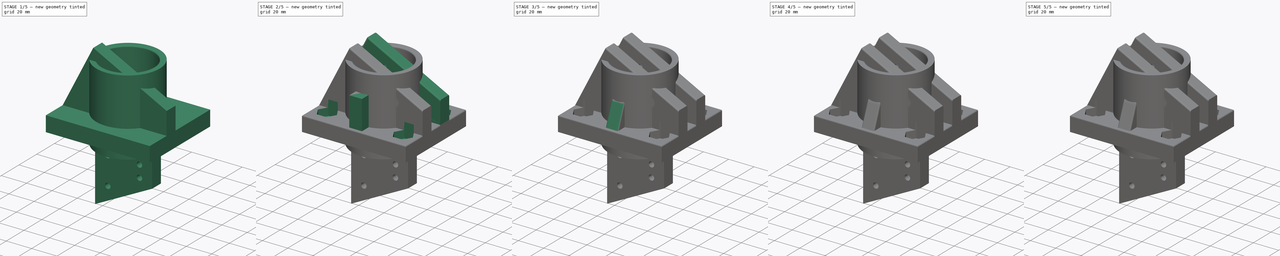
[diagram: build sequence overview — one tinted view per stage of 5, left to right]
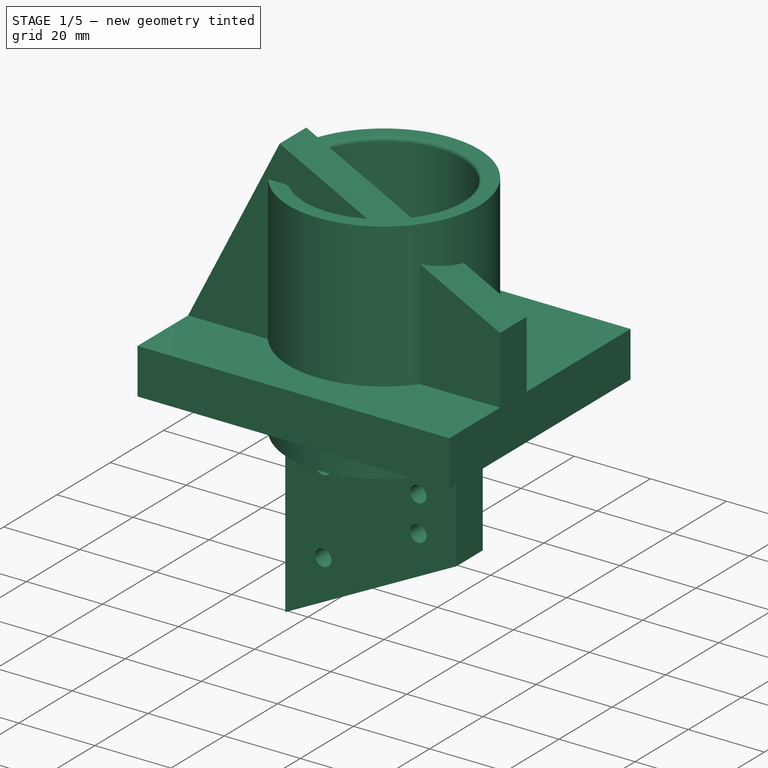
[diagram: stage 1 of 5 — iso view after this stage's code; geometry added in this stage tinted green]
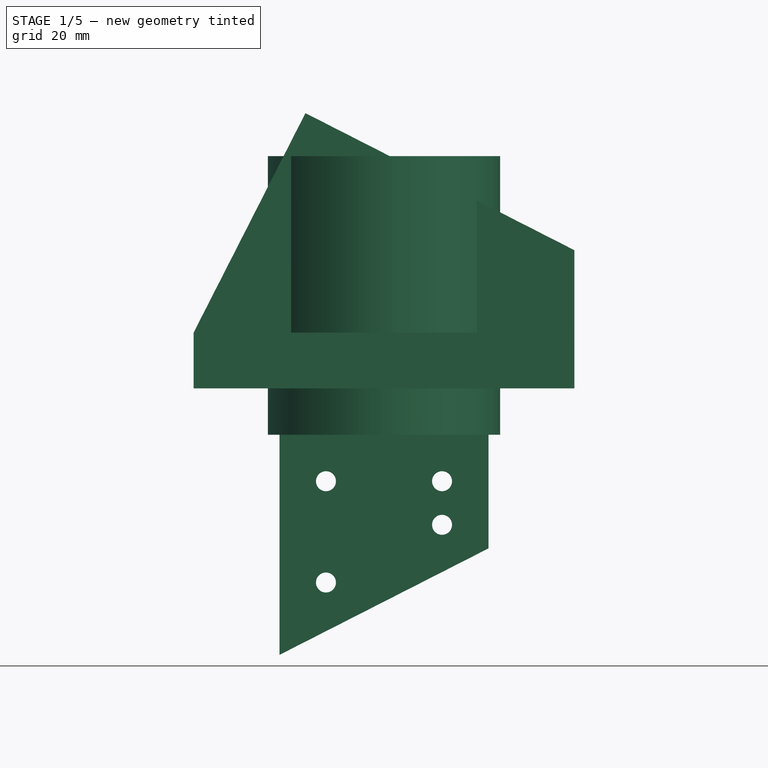
[diagram: stage 1 of 5 — front view after this stage's code; geometry added in this stage tinted green]
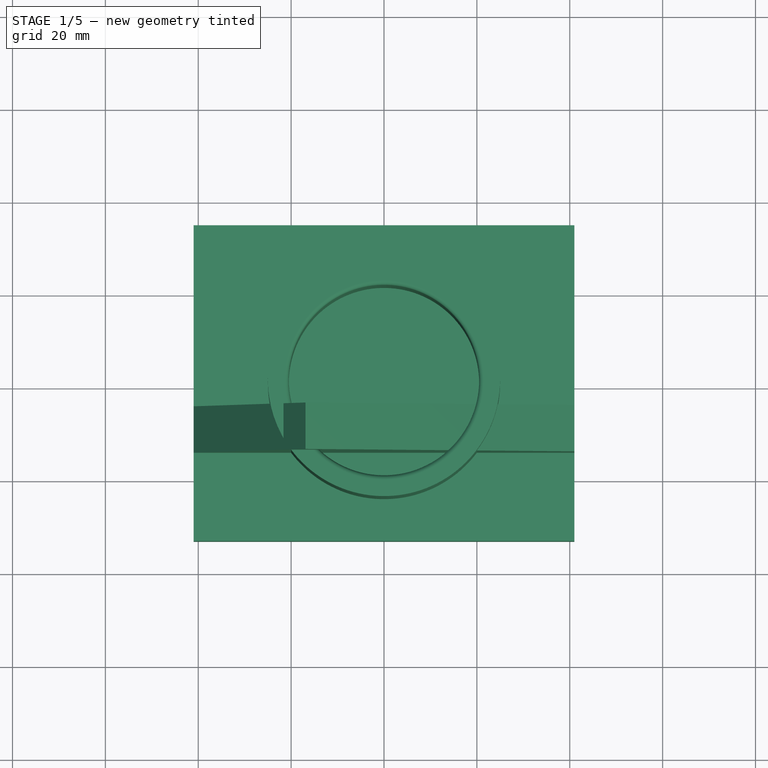
[diagram: stage 1 of 5 — top view after this stage's code; geometry added in this stage tinted green]
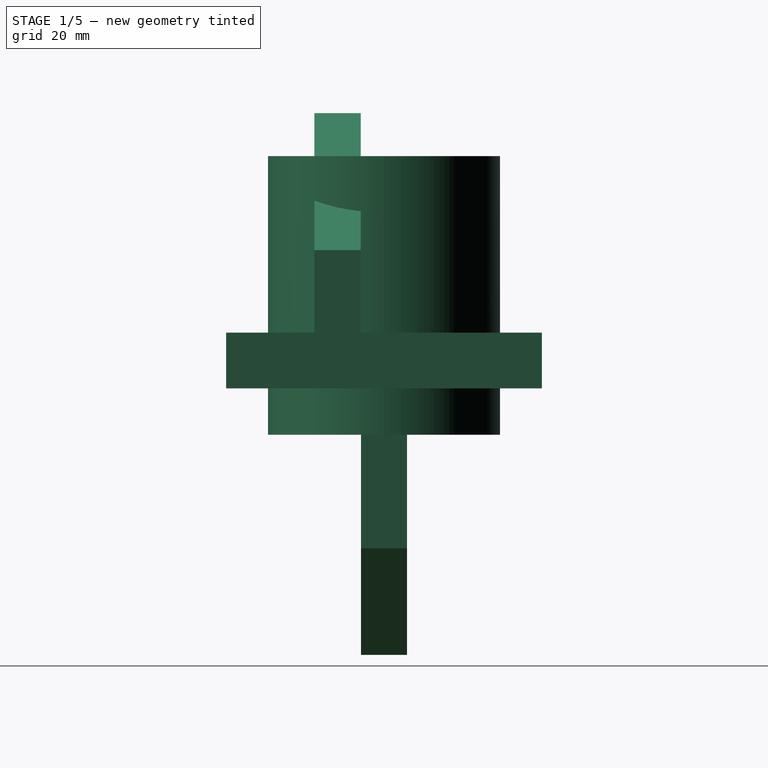
[diagram: stage 1 of 5 — right view after this stage's code; geometry added in this stage tinted green]
FCSTD DOCUMENT  (FreeCAD 1.0R39109 (Git))
Label: TC40CastorAdapter
License: All rights reserved
LicenseURL: http://en.wikipedia.org/wiki/All_rights_reserved
objects: Sketcher::SketchObject×31, PartDesign::Pocket×16, PartDesign::Pad×15, PartDesign::Fillet×9, PartDesign::Body×6, PartDesign::Plane×4, Spreadsheet::Sheet×1, PartDesign::LinearPattern×1, PartDesign::Mirrored×1
note: 196 computed .brp shape members not serialized (recipe doc carries the construction recipe); baked Part::Feature solids carry a one-line shape summary decoded from their .brp

FEATURE [Sketcher::SketchObject] Sketch
  ArcFitTolerance = 1e-06
  AttachmentSupport = -> [XY_Plane]
  FullyConstrained = true
  MakeInternals = false
  MapMode = 5
  expr: Constraints[10] = Spreadsheet.baseY
  expr: Constraints[9] = Spreadsheet.baseX
  sketch-geometry (4):
    g0: LineSegment StartX=-41 StartY=34 StartZ=0 EndX=-41 EndY=-34 EndZ=0
    g1: LineSegment StartX=-41 StartY=-34 StartZ=0 EndX=41 EndY=-34 EndZ=0
    g2: LineSegment StartX=41 StartY=-34 StartZ=0 EndX=41 EndY=34 EndZ=0
    g3: LineSegment StartX=41 StartY=34 StartZ=0 EndX=-41 EndY=34 EndZ=0
  constraints (11):
    c: Coincident(g0,g1)
    c: Coincident(g1,g2)
    c: Coincident(g2,g3)
    c: Coincident(g3,g0)
    c: Vertical(g0)
    c: Vertical(g2)
    c: Horizontal(g1)
    c: Horizontal(g3)
    c: Symmetric(g0,g1,g-1)
    c: DistanceX(g3,g3) = 82
    c: DistanceY(g0,g0) = 68
FEATURE [Spreadsheet::Sheet] Spreadsheet
  cells = A1='TC40 Castror Adapter; A2='tube_ID         ; B2(tubeID)==41 mm; A3='tube_wall       ; B3(tubeWall)==4.5 mm; A4='tube_len        ; B4(tubeLen)==50 mm; A5='leg_angle_deg   ; B5(tubeAngle)==63 °; A6='tube_OD; B6(tubeOD)==B2 + 2 * B3; A7='tube_flange_width; B7(tubeFlangewidth)==45 mm; A8='tube_flange_thickness; B8(tubeflangethickness)==bracketThickness - 0.1 mm; A10='# Base plate; A11='base_x          ; B11(baseX)==82 mm; A12='base_y          ; B12(baseY)==68 mm; A13='base_thick      ; B13(baseThick)==12 mm; A15='# bolt pattern; A16='bolt_x_centers; B16(boltXcenters)==60 mm; A17='bolt_y_centers; B17(boltYcenters)==42 mm; A20='# Gussets; A21='gus_thick       ; B21==6 mm; A22='gus_len         ; B22==14 mm; A23='gus_height      ; B23==14 mm; A25='#Flange; A26='backet_base; B26(bracketBase)==65 mm; A27='bracket_holeOffset; B27(bracketHoleOffset)==10 mm; A28='bracket_thickness; B28(bracketThickness)==10 mm; A29='tube_bracketbase; B29(tube_bracketbase)==tubeOD - 5 mm; A32='# Collar; A33='Collar Top height; B33(collarTopHeight)==4 mm; A34='CollarOffset; B34(collarOffset)==0.3 mm; A35='SpacerOD; B35(spacerOD)==B2 - 2 * B34; A36='SpacerID; B36(spaceID)==36.2 mm; A37='Spacerheight; B37(spacerheight)==15 mm; A39='#Post/Hole guides; A40='guidewidth; B40(guidewidth)==1.1 mm; A41='guidelength; B41(guidelength)==5 mm; A42='guidedepth; B42(guidedepth)==3 mm; A43='guidetolerance; B43(guidetolerance)==0.2 mm; A44='postwidth; B44(postwidth)==B40 - B43; A45='postlength; B45(postlength)==4 mm; A46='postdepth; B46(postdepth)==guidedepth - 2 * guidetolerance; A48='Bolts; A49='m4_hole; B49(m4hole)==4.3 mm; A50='m4_head; B50(m4head)==7 mm; A51='m4_head_depth; B51(m4headdepth)==3 mm; A52='m4_nut; B52(m4nut)==8.2 mm; A53='m4_nut_depth; B53(m4nutdepth)==3.5 mm; A55='m5_insert; B55(m5_insert)==6.7 mm; A57='m6_hole; B57(m6hole)==6.6 mm; A58='m6_head; B58(m6head)==10 mm; A59='m6_nut; B59(m6nut)==11.6 mm; A62='m8_hole; B62(m8hole)==8.8 mm; A63='m8_hexhead; B63(m8hexhead)==15 mm; A65='m2_insert; B65(m2insert)==3.4 mm; A66='m2_hole; B66(m2hole)==2 mm; A67='m2_head; B67(m2head)==3.4 mm
FEATURE [PartDesign::Pad] Pad  label="BasePad"
  Direction = (0,0,1)
  Length = 12
  Length2 = 10
  Profile = -> Sketch
  ReferenceAxis = -> Sketch [N_Axis]
  Suppressed = false
  Type = 0
  expr: Length = Spreadsheet.baseThick
FEATURE [PartDesign::Plane] DatumPlane
  AttachmentOffset = pos=(0,0,5) rot=(0,0,1;0rad)
  AttachmentSupport = -> [XZ_Plane]
  Length = 98.5912
  MapMode = 5
  Placement = pos=(0,-5,1.1e-15) rot=(1,0,0;1.5708rad)
  ResizeMode = 0
  Width = 100.515
FEATURE [Sketcher::SketchObject] Sketch001
  ArcFitTolerance = 1e-06
  AttachmentSupport = -> [DatumPlane]
  ExternalGeometry = -> [Pad]
  FullyConstrained = true
  MakeInternals = false
  MapMode = 5
  Placement = pos=(0,-5,1.1e-15) rot=(1,0,0;1.5708rad)
  expr: Constraints[7] = Spreadsheet.tubeAngle
  expr: Constraints[9] = Spreadsheet.bracketBase
  sketch-geometry (4):
    g0: LineSegment StartX=-41 StartY=12 StartZ=0 EndX=-16.9154 EndY=59.2686 EndZ=0
    g1: LineSegment StartX=41 StartY=12 StartZ=0 EndX=41 EndY=29.7593 EndZ=0
    g2: LineSegment StartX=-16.9154 StartY=59.2686 StartZ=0 EndX=41 EndY=29.7593 EndZ=0
    g3: LineSegment StartX=-41 StartY=12 StartZ=0 EndX=41 EndY=12 EndZ=0
  constraints (10):
    c: Coincident(g3,g-3)
    c: Coincident(g3,g-3)
    c: Coincident(g1,g3)
    c: Vertical(g1,g1)
    c: Coincident(g0,g3)
    c: Coincident(g0,g2)
    c: Angle(g0,g2) = 1.5708
    c: Angle(g3,g0) = 1.09956
    c: Coincident(g2,g1)
    c: Distance(g2,g2) = 65
FEATURE [PartDesign::Pad] Pad001  label="FrontFlange"
  BaseFeature = -> Pad
  Direction = (0,-1,2e-16)
  Length = 10
  Length2 = 10
  Profile = -> Sketch001
  ReferenceAxis = -> Sketch001 [N_Axis]
  Suppressed = false
  Type = 0
  expr: Length = Spreadsheet.bracketThickness
FEATURE [Sketcher::SketchObject] Sketch005
  ArcFitTolerance = 1e-06
  AttachmentSupport = -> [XY_Plane001]
  FullyConstrained = true
  MakeInternals = false
  MapMode = 5
  expr: Constraints[1] = Spreadsheet.tubeID
  expr: Constraints[3] = Spreadsheet.tubeWall
  sketch-geometry (2):
    g0: Circle CenterX=0 CenterY=0 CenterZ=0 NormalX=0 NormalY=0 NormalZ=1 AngleXU=0 Radius=20.5
    g1: Circle CenterX=0 CenterY=0 CenterZ=0 NormalX=0 NormalY=0 NormalZ=1 AngleXU=0 Radius=25
  constraints (4):
    c: Coincident(g0,g-1)
    c: Diameter(g0) = 41
    c: Coincident(g1,g0)
    c: Distance(g0,g1) = 4.5
FEATURE [PartDesign::Pad] Pad002  label="TubeLeg"
  Direction = (0,0,1)
  Length = 50
  Length2 = 10
  Profile = -> Sketch005
  ReferenceAxis = -> Sketch005 [N_Axis]
  Suppressed = false
  Type = 0
  expr: Length = Spreadsheet.tubeLen
FEATURE [Sketcher::SketchObject] Sketch006
  ArcFitTolerance = 1e-06
  AttachmentSupport = -> [Pad002]
  ExternalGeometry = -> [Pad002]
  FullyConstrained = true
  MakeInternals = false
  MapMode = 5
  Placement = pos=(0,0,0) rot=(1,0,0;3.14159rad)
  sketch-geometry (1):
    g0: Circle CenterX=0 CenterY=0 CenterZ=0 NormalX=0 NormalY=0 NormalZ=1 AngleXU=0 Radius=25
  constraints (2):
    c: Coincident(g0,g-1)
    c: Equal(g0,g-3)
FEATURE [PartDesign::Pad] Pad003  label="TubeBase"
  BaseFeature = -> Pad002
  Direction = (0,0,-1)
  Length = 10
  Length2 = 10
  Profile = -> Sketch006
  ReferenceAxis = -> Sketch006 [N_Axis]
  Suppressed = false
  Type = 0
FEATURE [PartDesign::Plane] DatumPlane001  label="DatumTubeFlange"
  AttachmentSupport = -> [XZ_Plane001]
  Length = 64.6557
  MapMode = 5
  Placement = pos=(0,0,0) rot=(1,0,0;1.5708rad)
  ResizeMode = 0
  Width = 122.05
FEATURE [Sketcher::SketchObject] Sketch007
  ArcFitTolerance = 1e-06
  AttachmentSupport = -> [DatumPlane001]
  ExternalGeometry = -> [Pad003]
  FullyConstrained = true
  MakeInternals = false
  MapMode = 5
  Placement = pos=(0,0,0) rot=(1,0,0;1.5708rad)
  expr: Constraints[11] = Spreadsheet.bracketBase
  expr: Constraints[16] = Spreadsheet.tube_bracketbase
  expr: Constraints[4] = Spreadsheet.baseX
  expr: Constraints[8] = Spreadsheet.tubeAngle
  sketch-geometry (11):
    g0: LineSegment StartX=-22.5 StartY=-10 StartZ=0 EndX=-22.5 EndY=-57.3944 EndZ=0
    g1: GeomPoint [constr] X=-1.4e-15 Y=-10 Z=0
    g2: LineSegment [constr] StartX=-32.5 StartY=-10 StartZ=0 EndX=32.5 EndY=-10 EndZ=0
    g3: GeomPoint [constr] X=-1.4e-15 Y=-10 Z=0
    g4: LineSegment [constr] StartX=-32.5 StartY=-63.0508 StartZ=0 EndX=40.5625 EndY=-25.8236 EndZ=0
    g5: LineSegment [constr] StartX=-32.5 StartY=-10 StartZ=0 EndX=-32.5 EndY=-63.0508 EndZ=0
    g6: LineSegment [constr] StartX=32.5 StartY=-10 StartZ=0 EndX=40.5625 EndY=-25.8236 EndZ=0
    g7: GeomPoint [constr] X=-1.4e-15 Y=-10 Z=0
    g8: LineSegment StartX=-22.5 StartY=-10 StartZ=0 EndX=22.5 EndY=-10 EndZ=0
    g9: LineSegment StartX=22.5 StartY=-10 StartZ=0 EndX=22.5 EndY=-34.4658 EndZ=0
    g10: LineSegment StartX=22.5 StartY=-34.4658 StartZ=0 EndX=-22.5 EndY=-57.3944 EndZ=0
  constraints (25):
    c: Vertical(g0)
    c: Horizontal(g2)
    c: Symmetric(g2,g2,g3)
    c: Coincident(g3,g1)
    c: Distance(g4,g4) = 82
    c: Coincident(g5,g2)
    c: Coincident(g5,g4)
    c: Perpendicular(g5,g2)
    c: Angle(g4,g5) = 1.09956
    c: Coincident(g6,g2)
    c: Coincident(g6,g4)
    c: DistanceX(g2,g2) = 65
    c: Perpendicular(g6,g4)
    c: Symmetric(g-3,g-3,g7)
    c: Coincident(g1,g7)
    c: Horizontal(g8)
    c: DistanceX(g8,g8) = 45
    c: Symmetric(g8,g8,g1)
    c: Coincident(g0,g8)
    c: Vertical(g9)
    c: Coincident(g9,g8)
    c: Coincident(g10,g9)
    c: Coincident(g10,g0)
    c: Parallel(g10,g4)
    c: Distance(g4,g10) = 0.5
FEATURE [PartDesign::Pad] Pad004  label="TubeFlange"
  BaseFeature = -> Pad003
  Direction = (0,-1,2e-16)
  Length = 9.9
  Length2 = 10
  Midplane = true
  Profile = -> Sketch007
  ReferenceAxis = -> Sketch007 [N_Axis]
  Suppressed = false
  Type = 0
  expr: Length = Spreadsheet.tubeflangethickness
FEATURE [Sketcher::SketchObject] Sketch008
  ArcFitTolerance = 1e-06
  AttachmentSupport = -> [Pad004]
  ExternalGeometry = -> [Pad004]
  FullyConstrained = true
  MakeInternals = false
  MapMode = 5
  Placement = pos=(0,-4.95,0) rot=(1,0,0;1.5708rad)
  expr: Constraints[11] = Spreadsheet.bracketHoleOffset
  expr: Constraints[12] = Spreadsheet.bracketHoleOffset
  expr: Constraints[14] = Spreadsheet.bracketHoleOffset
  expr: Constraints[1] = Spreadsheet.bracketBase
  expr: Constraints[23] = Spreadsheet.bracketHoleOffset
  expr: Constraints[24] = Spreadsheet.bracketHoleOffset
  expr: Constraints[7] = Spreadsheet.m4hole
  sketch-geometry (11):
    g0: LineSegment [constr] StartX=-32.5 StartY=-10 StartZ=0 EndX=32.5 EndY=-10 EndZ=0
    g1: GeomPoint [constr] X=-7e-16 Y=-10 Z=0
    g2: GeomPoint [constr] X=-7e-16 Y=-10 Z=0
    g3: GeomPoint [constr] X=-16.25 Y=-10 Z=0
    g4: GeomPoint [constr] X=16.25 Y=-10 Z=0
    g5: Circle CenterX=-12.5 CenterY=-20 CenterZ=0 NormalX=0 NormalY=0 NormalZ=1 AngleXU=0 Radius=2.15
    g6: Circle CenterX=12.5 CenterY=-20 CenterZ=0 NormalX=0 NormalY=0 NormalZ=1 AngleXU=0 Radius=2.15
    g7: Circle CenterX=-12.5 CenterY=-41.815 CenterZ=0 NormalX=0 NormalY=0 NormalZ=1 AngleXU=0 Radius=2.15
    g8: Circle CenterX=12.5 CenterY=-29.3886 CenterZ=0 NormalX=0 NormalY=0 NormalZ=1 AngleXU=0 Radius=2.15
    g9: LineSegment [constr] StartX=-22.5 StartY=-57.3944 StartZ=0 EndX=22.5 EndY=-35.0269 EndZ=0
    g10: LineSegment [constr] StartX=22.5 StartY=-35.5853 StartZ=0 EndX=-22.5 EndY=-57.9528 EndZ=0
  constraints (25):
    c: Horizontal(g0)
    c: DistanceX(g0,g0) = 65
    c: Symmetric(g-5,g-5,g1)
    c: Symmetric(g0,g0,g2)
    c: Symmetric(g0,g2,g3)
    c: Symmetric(g2,g0,g4)
    c: Coincident(g2,g1)
    c: Diameter(g5) = 4.3
    c: Equal(g5,g6)
    c: Equal(g6,g8)
    c: Equal(g8,g7)
    c: Distance(g5,g0) = 10
    c: Distance(g5,g-3) = 10
    c: Horizontal(g6,g5)
    c: Distance(g6,g-4) = 10
    c: Vertical(g8,g6)
    c: Vertical(g5,g7)
    c: Coincident(g9,g-3)
    c: Coincident(g9,g-4)
    c: Vertical(g9,g10)
    c: Vertical(g10,g9)
    c: Parallel(g9,g10)
    c: Distance(g10,g9) = 0.5
    c: Distance(g8,g10) = 10
    c: Distance(g7,g10) = 10
FEATURE [PartDesign::Pocket] Pocket003  label="Flange bolthole"
  BaseFeature = -> Pad004
  Direction = (0,1,-2e-16)
  Length = 5
  Length2 = 5
  Midplane = true
  Profile = -> Sketch008
  ReferenceAxis = -> Sketch008 [N_Axis]
  Suppressed = false
  Type = 2
FEATURE [PartDesign::Body] Body  label="Base"
  AllowCompound = false
  Group = -> [Sketch,Pad,DatumPlane,Sketch001,Pad001,LinearPattern,Sketch002,Pocket,Sketch003,Pocket001,Sketch004,Pocket002,Fillet,Fillet001,Sketch026,Pocket012,Sketch027,Pocket013,DatumPlane002,Sketch028,Pad014,Sketch029,Pocket014,Mirrored,Fillet007]
  Origin = -> Origin
  Tip = -> Fillet007
FEATURE [PartDesign::Fillet] Fillet008
  Base = -> Pocket003 [Edge6]
  BaseFeature = -> Pocket003
  Radius = 1
  SupportTransform = false
  Suppressed = false
  UseAllEdges = false
FEATURE [PartDesign::Plane] DatumPlane003
  AttachmentOffset = pos=(0,0,-26) rot=(0,0,1;0rad)
  AttachmentSupport = -> [YZ_Plane001]
  Length = 64.6557
  MapMode = 5
  Placement = pos=(-26,0,0) rot=(0.57735,0.57735,0.57735;2.0944rad)
  ResizeMode = 0
  Width = 122.05
FEATURE [Sketcher::SketchObject] Sketch030
  ArcFitTolerance = 1e-06
  AttachmentSupport = -> [DatumPlane003]
  ExternalGeometry = -> [Fillet008]
  FullyConstrained = true
  MakeInternals = false
  MapMode = 5
  Placement = pos=(-26,0,0) rot=(0.57735,0.57735,0.57735;2.0944rad)
  expr: Constraints[2] = Spreadsheet.m5_insert
  sketch-geometry (1):
    g0: Circle CenterX=0 CenterY=40 CenterZ=0 NormalX=0 NormalY=0 NormalZ=1 AngleXU=0 Radius=3.35
  constraints (3):
    c: PointOnObject(g0,g-2)
    c: DistanceY(g0,g-4) = 10
    c: Diameter(g0) = 6.7
FEATURE [PartDesign::Pocket] Pocket015
  BaseFeature = -> Fillet008
  Direction = (-1,0,0)
  Length = 10
  Length2 = 5
  Profile = -> Sketch030
  ReferenceAxis = -> Sketch030 [N_Axis]
  Reversed = true
  Suppressed = false
  Type = 0
FEATURE [PartDesign::Body] Body001  label="Tube"
  AllowCompound = false
  Group = -> [Sketch005,Pad002,Sketch006,Pad003,DatumPlane001,Sketch007,Pad004,Sketch008,Pocket003,Fillet008,DatumPlane003,Sketch030,Pocket015]
  Origin = -> Origin001
  Placement = pos=(16.5,0,53.5) rot=(0,1,0;0.471239rad)
  Tip = -> Pocket015
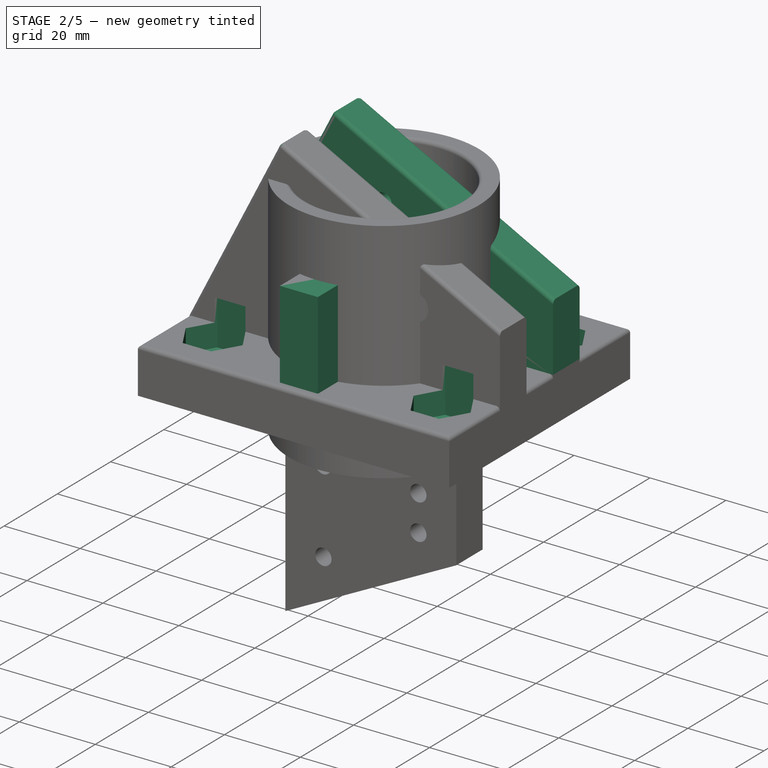
[diagram: stage 2 of 5 — iso view after this stage's code; geometry added in this stage tinted green]
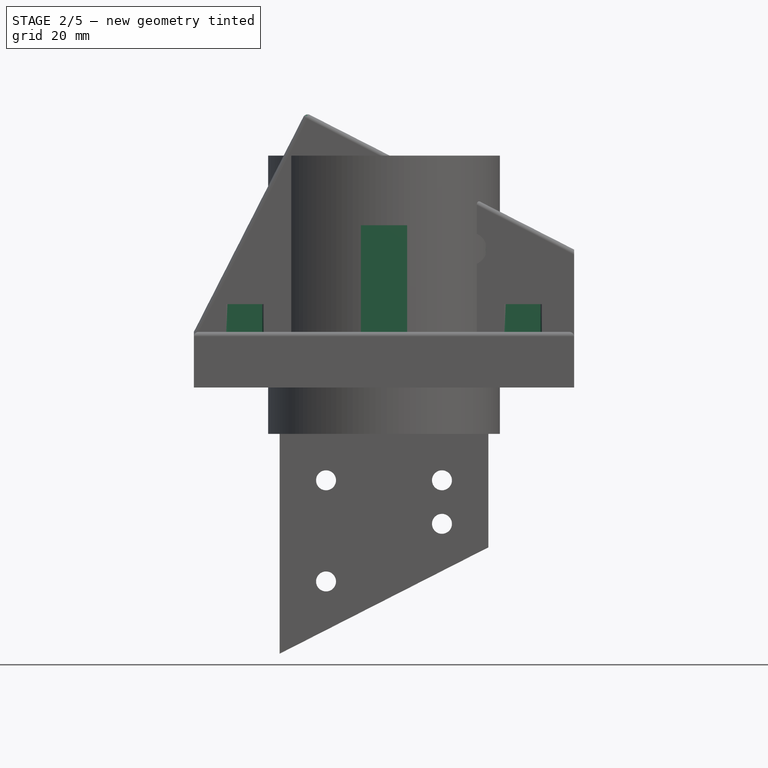
[diagram: stage 2 of 5 — front view after this stage's code; geometry added in this stage tinted green]
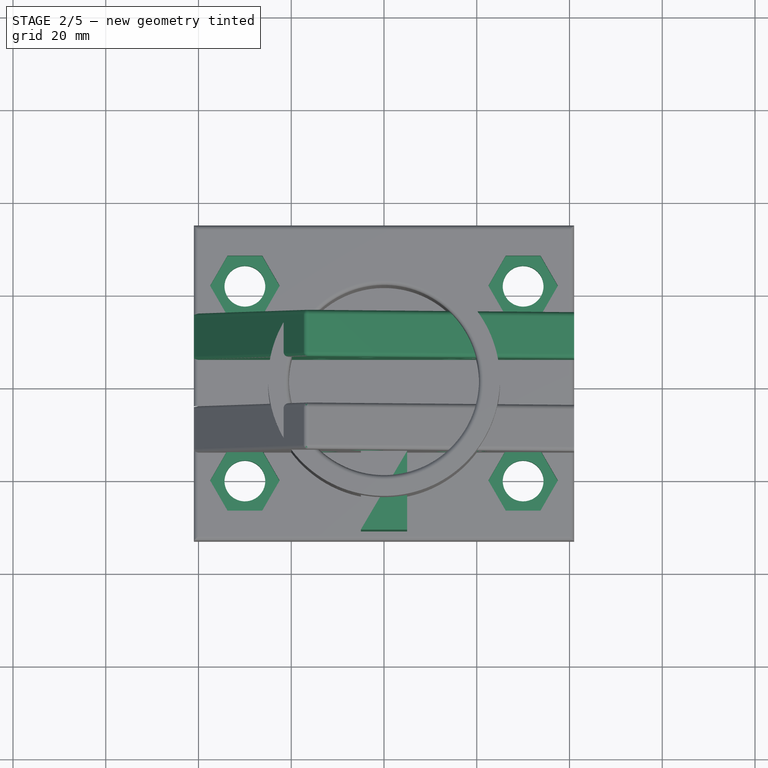
[diagram: stage 2 of 5 — top view after this stage's code; geometry added in this stage tinted green]
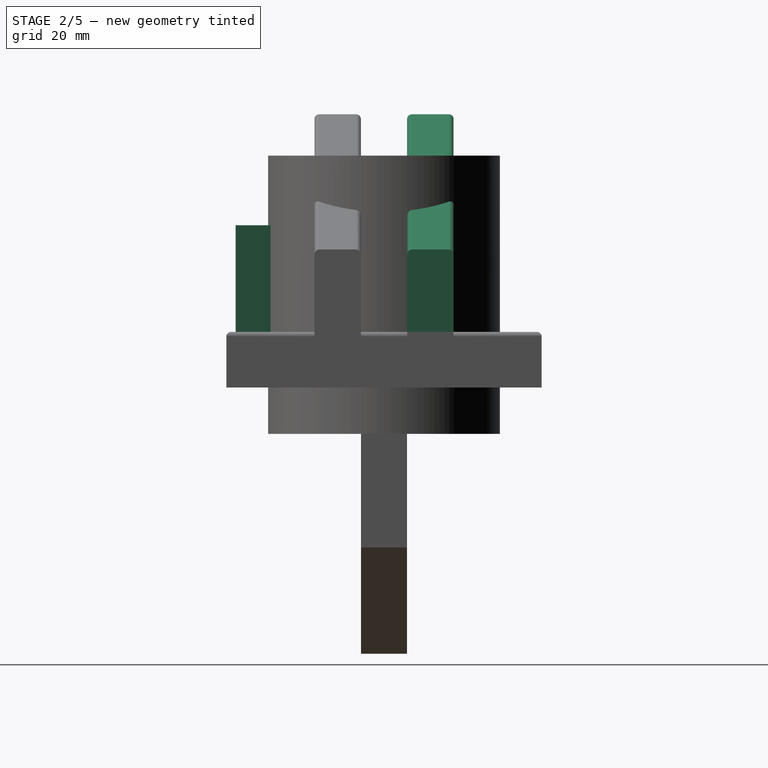
[diagram: stage 2 of 5 — right view after this stage's code; geometry added in this stage tinted green]
FEATURE [PartDesign::LinearPattern] LinearPattern  label="RearFlange"
  BaseFeature = -> Pad001
  Direction = -> Y_Axis
  Length = 20
  Mode = 0
  Occurrences = 2
  Offset = 20
  Originals = -> [Pad001]
  Suppressed = false
  TransformMode = 0
  expr: Length = Spreadsheet.bracketThickness * 2
FEATURE [Sketcher::SketchObject] Sketch002
  ArcFitTolerance = 1e-06
  AttachmentSupport = -> [LinearPattern]
  ExternalGeometry = -> [LinearPattern]
  FullyConstrained = true
  MakeInternals = false
  MapMode = 5
  Placement = pos=(0,-15,3.4e-15) rot=(1,0,0;1.5708rad)
  expr: Constraints[14] = Spreadsheet.bracketHoleOffset
  expr: Constraints[15] = Spreadsheet.bracketHoleOffset
  expr: Constraints[16] = Spreadsheet.bracketHoleOffset
  expr: Constraints[17] = Spreadsheet.bracketHoleOffset
  expr: Constraints[19] = Spreadsheet.bracketHoleOffset
  expr: Constraints[1] = Spreadsheet.tubeFlangewidth
  expr: Constraints[20] = Spreadsheet.bracketHoleOffset
  expr: Constraints[21] = Spreadsheet.bracketHoleOffset
  expr: Constraints[4] = Spreadsheet.m4hole
  sketch-geometry (8):
    g0: GeomPoint [constr] X=12.0423 Y=44.514 Z=0
    g1: LineSegment [constr] StartX=-8.00536 StartY=54.7287 StartZ=0 EndX=32.0899 EndY=34.2992 EndZ=0
    g2: Circle CenterX=-3.6352 CenterY=41.2788 CenterZ=0 NormalX=0 NormalY=0 NormalZ=1 AngleXU=0 Radius=2.15
    g3: Circle CenterX=18.64 CenterY=29.929 CenterZ=0 NormalX=0 NormalY=0 NormalZ=1 AngleXU=0 Radius=2.15
    g4: Circle CenterX=-13.4582 CenterY=22 CenterZ=0 NormalX=0 NormalY=0 NormalZ=1 AngleXU=0 Radius=2.15
    g5: Circle CenterX=14.5999 CenterY=22 CenterZ=0 NormalX=0 NormalY=0 NormalZ=1 AngleXU=0 Radius=2.15
    g6: LineSegment [constr] StartX=-8.00536 StartY=54.7287 StartZ=0 EndX=-29.7767 EndY=12 EndZ=0
    g7: LineSegment [constr] StartX=32.0899 StartY=34.2992 StartZ=0 EndX=20.7279 EndY=12 EndZ=0
  constraints (22):
    c: Symmetric(g-3,g-3,g0)
    c: Distance(g1,g1) = 45
    c: PointOnObject(g1,g-3)
    c: Symmetric(g1,g1,g0)
    c: Diameter(g2) = 4.3
    c: Equal(g2,g3)
    c: Equal(g3,g5)
    c: Equal(g5,g4)
    c: Coincident(g6,g1)
    c: PointOnObject(g6,g-4)
    c: Coincident(g7,g1)
    c: PointOnObject(g7,g-4)
    c: Perpendicular(g1,g6)
    c: Perpendicular(g7,g1)
    c: Distance(g2,g1) = 10
    c: Distance(g2,g6) = 10
    c: Distance(g4,g6) = 10
    c: Distance(g4,g-4) = 10
    c: Horizontal(g4,g5)
    c: Distance(g5,g7) = 10
    c: Distance(g3,g1) = 10
    c: Distance(g3,g7) = 10
FEATURE [PartDesign::Pocket] Pocket  label="FlangeHole"
  BaseFeature = -> LinearPattern
  Direction = (0,1,-2e-16)
  Length = 5
  Length2 = 5
  Profile = -> Sketch002
  ReferenceAxis = -> Sketch002 [N_Axis]
  Suppressed = false
  Type = 1
FEATURE [Sketcher::SketchObject] Sketch003
  ArcFitTolerance = 1e-06
  AttachmentSupport = -> [Pocket]
  ExternalGeometry = -> [Pocket]
  FullyConstrained = true
  MakeInternals = false
  MapMode = 5
  Placement = pos=(0,0,12) rot=(0,0,1;0rad)
  expr: Constraints[10] = Spreadsheet.boltYcenters
  expr: Constraints[15] = Spreadsheet.m8hole
  expr: Constraints[9] = Spreadsheet.boltXcenters
  sketch-geometry (8):
    g0: LineSegment [constr] StartX=-30 StartY=21 StartZ=0 EndX=-30 EndY=-21 EndZ=0
    g1: LineSegment [constr] StartX=-30 StartY=-21 StartZ=0 EndX=30 EndY=-21 EndZ=0
    g2: LineSegment [constr] StartX=30 StartY=-21 StartZ=0 EndX=30 EndY=21 EndZ=0
    g3: LineSegment [constr] StartX=30 StartY=21 StartZ=0 EndX=-30 EndY=21 EndZ=0
    g4: Circle CenterX=-30 CenterY=21 CenterZ=0 NormalX=0 NormalY=0 NormalZ=1 AngleXU=0 Radius=4.4
    g5: Circle CenterX=30 CenterY=21 CenterZ=0 NormalX=0 NormalY=0 NormalZ=1 AngleXU=0 Radius=4.4
    g6: Circle CenterX=30 CenterY=-21 CenterZ=0 NormalX=0 NormalY=0 NormalZ=1 AngleXU=0 Radius=4.4
    g7: Circle CenterX=-30 CenterY=-21 CenterZ=0 NormalX=0 NormalY=0 NormalZ=1 AngleXU=0 Radius=4.4
  constraints (19):
    c: Coincident(g0,g1)
    c: Coincident(g1,g2)
    c: Coincident(g2,g3)
    c: Coincident(g3,g0)
    c: Vertical(g0)
    c: Vertical(g2)
    c: Horizontal(g1)
    c: Horizontal(g3)
    c: Symmetric(g0,g1,g-1)
    c: DistanceX(g3,g3) = 60
    c: DistanceY(g0,g0) = 42
    c: Coincident(g4,g0)
    c: Coincident(g5,g2)
    c: Coincident(g7,g0)
    c: Coincident(g6,g1)
    c: Diameter(g4) = 8.8
    c: Equal(g4,g5)
    c: Equal(g5,g6)
    c: Equal(g6,g7)
FEATURE [PartDesign::Pocket] Pocket001  label="BoltHoles"
  BaseFeature = -> Pocket
  Direction = (0,0,-1)
  Length = 5
  Length2 = 5
  Profile = -> Sketch003
  ReferenceAxis = -> Sketch003 [N_Axis]
  Suppressed = false
  Type = 2
FEATURE [Sketcher::SketchObject] Sketch004
  ArcFitTolerance = 1e-06
  AttachmentSupport = -> [Pocket001]
  ExternalGeometry = -> [Pocket001]
  FullyConstrained = true
  MakeInternals = false
  MapMode = 5
  Placement = pos=(0,0,12) rot=(0,0,1;0rad)
  expr: Constraints[17] = Spreadsheet.m8hexhead
  sketch-geometry (28):
    g0: LineSegment StartX=-22.5 StartY=21 StartZ=0 EndX=-26.25 EndY=27.4952 EndZ=0
    g1: LineSegment StartX=-26.25 StartY=27.4952 StartZ=0 EndX=-33.75 EndY=27.4952 EndZ=0
    g2: LineSegment StartX=-33.75 StartY=27.4952 StartZ=0 EndX=-37.5 EndY=21 EndZ=0
    g3: LineSegment StartX=-37.5 StartY=21 StartZ=0 EndX=-33.75 EndY=14.5048 EndZ=0
    g4: LineSegment StartX=-33.75 StartY=14.5048 StartZ=0 EndX=-26.25 EndY=14.5048 EndZ=0
    g5: LineSegment StartX=-26.25 StartY=14.5048 StartZ=0 EndX=-22.5 EndY=21 EndZ=0
    g6: Circle [constr] CenterX=-30 CenterY=21 CenterZ=0 NormalX=0 NormalY=0 NormalZ=1 AngleXU=0 Radius=7.5
    g7: LineSegment StartX=37.5 StartY=21 StartZ=0 EndX=33.75 EndY=27.4952 EndZ=0
    g8: LineSegment StartX=33.75 StartY=27.4952 StartZ=0 EndX=26.25 EndY=27.4952 EndZ=0
    g9: LineSegment StartX=26.25 StartY=27.4952 StartZ=0 EndX=22.5 EndY=21 EndZ=0
    g10: LineSegment StartX=22.5 StartY=21 StartZ=0 EndX=26.25 EndY=14.5048 EndZ=0
    g11: LineSegment StartX=26.25 StartY=14.5048 StartZ=0 EndX=33.75 EndY=14.5048 EndZ=0
    g12: LineSegment StartX=33.75 StartY=14.5048 StartZ=0 EndX=37.5 EndY=21 EndZ=0
    g13: Circle [constr] CenterX=30 CenterY=21 CenterZ=0 NormalX=0 NormalY=0 NormalZ=1 AngleXU=0 Radius=7.5
    g14: LineSegment StartX=33.75 StartY=-27.4952 StartZ=0 EndX=37.5 EndY=-21 EndZ=0
    g15: LineSegment StartX=37.5 StartY=-21 StartZ=0 EndX=33.75 EndY=-14.5048 EndZ=0
    g16: LineSegment StartX=33.75 StartY=-14.5048 StartZ=0 EndX=26.25 EndY=-14.5048 EndZ=0
    g17: LineSegment StartX=26.25 StartY=-14.5048 StartZ=0 EndX=22.5 EndY=-21 EndZ=0
    g18: LineSegment StartX=22.5 StartY=-21 StartZ=0 EndX=26.25 EndY=-27.4952 EndZ=0
    g19: LineSegment StartX=26.25 StartY=-27.4952 StartZ=0 EndX=33.75 EndY=-27.4952 EndZ=0
    g20: Circle [constr] CenterX=30 CenterY=-21 CenterZ=0 NormalX=0 NormalY=0 NormalZ=1 AngleXU=0 Radius=7.5
    g21: LineSegment StartX=-26.25 StartY=-27.4952 StartZ=0 EndX=-22.5 EndY=-21 EndZ=0
    g22: LineSegment StartX=-22.5 StartY=-21 StartZ=0 EndX=-26.25 EndY=-14.5048 EndZ=0
    g23: LineSegment StartX=-26.25 StartY=-14.5048 StartZ=0 EndX=-33.75 EndY=-14.5048 EndZ=0
    g24: LineSegment StartX=-33.75 StartY=-14.5048 StartZ=0 EndX=-37.5 EndY=-21 EndZ=0
    g25: LineSegment StartX=-37.5 StartY=-21 StartZ=0 EndX=-33.75 EndY=-27.4952 EndZ=0
    g26: LineSegment StartX=-33.75 StartY=-27.4952 StartZ=0 EndX=-26.25 EndY=-27.4952 EndZ=0
    g27: Circle [constr] CenterX=-30 CenterY=-21 CenterZ=0 NormalX=0 NormalY=0 NormalZ=1 AngleXU=0 Radius=7.5
  constraints (64):
    c: Coincident(g0,g1)
    c: Coincident(g1,g2)
    c: Coincident(g2,g3)
    c: Coincident(g3,g4)
    c: Coincident(g4,g5)
    c: Coincident(g5,g0)
    c: Equal(g0, g1-g5) x5
    c: PointOnObject(g0,g6)
    c: PointOnObject(g1,g6)
    c: PointOnObject(g2,g6)
    c: PointOnObject(g3,g6)
    c: PointOnObject(g4,g6)
    c: PointOnObject(g5,g6)
    c: Diameter(g6) = 15
    c: Coincident(g6,g-3)
    c: Horizontal(g2,g0)
    c: Coincident(g7,g8)
    c: Coincident(g8,g9)
    c: Coincident(g9,g10)
    c: Coincident(g10,g11)
    c: Coincident(g11,g12)
    c: Coincident(g12,g7)
    c: Equal(g7, g8-g12) x5
    c: PointOnObject(g7,g13)
    c: PointOnObject(g8,g13)
    c: PointOnObject(g9,g13)
    c: PointOnObject(g10,g13)
    c: PointOnObject(g11,g13)
    c: PointOnObject(g12,g13)
    c: Coincident(g14,g15)
    c: Coincident(g15,g16)
    c: Coincident(g16,g17)
    c: Coincident(g17,g18)
    c: Coincident(g18,g19)
    c: Coincident(g19,g14)
    c: Equal(g14, g15-g19) x5
    c: PointOnObject(g14,g20)
    c: PointOnObject(g15,g20)
    c: PointOnObject(g16,g20)
    c: PointOnObject(g17,g20)
    c: PointOnObject(g18,g20)
    c: PointOnObject(g19,g20)
    c: Coincident(g21,g22)
    c: Coincident(g22,g23)
    c: Coincident(g23,g24)
    c: Coincident(g24,g25)
    c: Coincident(g25,g26)
    c: Coincident(g26,g21)
    c: Equal(g21, g22-g26) x5
    c: PointOnObject(g21,g27)
    c: PointOnObject(g22,g27)
    c: PointOnObject(g23,g27)
    c: PointOnObject(g24,g27)
    c: PointOnObject(g25,g27)
    c: PointOnObject(g26,g27)
    c: Equal(g6,g13)
    c: Equal(g13,g20)
    c: Equal(g20,g27)
    c: Coincident(g13,g-4)
    c: Horizontal(g7,g9)
    c: Coincident(g27,g-6)
    c: Horizontal(g24,g21)
    c: Coincident(g20,g-5)
    c: Horizontal(g17,g14)
FEATURE [PartDesign::Pocket] Pocket002  label="BoltHeads"
  BaseFeature = -> Pocket001
  Direction = (0,0,-1)
  Length = 12
  Length2 = 5
  Midplane = true
  Profile = -> Sketch004
  ReferenceAxis = -> Sketch004 [N_Axis]
  Suppressed = false
  Type = 0
FEATURE [PartDesign::Fillet] Fillet  label="FilletBase"
  Base = -> Pocket002 [Edge14,Edge8,Edge6,Edge4,Edge11,Edge33,Edge37,Edge56]
  BaseFeature = -> Pocket002
  Radius = 1
  SupportTransform = false
  Suppressed = false
  UseAllEdges = false
FEATURE [PartDesign::Fillet] Fillet001  label="FilletFlange"
  Base = -> Fillet [Edge65,Edge86,Edge80,Edge45,Edge55,Edge30,Edge28,Edge46,Edge81,Edge63]
  BaseFeature = -> Fillet
  Radius = 1
  SupportTransform = false
  Suppressed = false
  UseAllEdges = false
FEATURE [Sketcher::SketchObject] Sketch026  label="boltHead"
  ArcFitTolerance = 1e-06
  AttachmentSupport = -> [Fillet001]
  ExternalGeometry = -> [Fillet001]
  FullyConstrained = true
  MakeInternals = false
  MapMode = 5
  Placement = pos=(0,-15,3.4e-15) rot=(1,0,0;1.5708rad)
  expr: Constraints[0] = Spreadsheet.m4head
  sketch-geometry (4):
    g0: Circle CenterX=-3.6352 CenterY=41.2788 CenterZ=0 NormalX=0 NormalY=0 NormalZ=1 AngleXU=0 Radius=3.5
    g1: Circle CenterX=18.64 CenterY=29.929 CenterZ=0 NormalX=0 NormalY=0 NormalZ=1 AngleXU=0 Radius=3.5
    g2: Circle CenterX=14.5999 CenterY=22 CenterZ=0 NormalX=0 NormalY=0 NormalZ=1 AngleXU=0 Radius=3.5
    g3: Circle CenterX=-13.4582 CenterY=22 CenterZ=0 NormalX=0 NormalY=0 NormalZ=1 AngleXU=0 Radius=3.5
  constraints (8):
    c: Diameter(g0) = 7
    c: Equal(g0,g1)
    c: Equal(g1,g2)
    c: Equal(g2,g3)
    c: Coincident(g0,g-3)
    c: Coincident(g1,g-4)
    c: Coincident(g2,g-5)
    c: Coincident(g3,g-6)
FEATURE [PartDesign::Pocket] Pocket012  label="BoltHead001"
  BaseFeature = -> Fillet001
  Direction = (0,1,-2e-16)
  Length = 3
  Length2 = 5
  Profile = -> Sketch026
  ReferenceAxis = -> Sketch026 [N_Axis]
  Suppressed = false
  Type = 0
  expr: Length = Spreadsheet.m4headdepth
FEATURE [Sketcher::SketchObject] Sketch027
  ArcFitTolerance = 1e-06
  AttachmentSupport = -> [Pocket012]
  ExternalGeometry = -> [Pocket012]
  FullyConstrained = true
  MakeInternals = false
  MapMode = 5
  Placement = pos=(0,15,-3.4e-15) rot=(0,0.707107,0.707107;3.14159rad)
  expr: Constraints[68] = Spreadsheet.m4nut
  sketch-geometry (28):
    g0: LineSegment StartX=-15.0893 StartY=27.879 StartZ=0 EndX=-15.0893 EndY=31.979 EndZ=0
    g1: LineSegment StartX=-15.0893 StartY=31.979 StartZ=0 EndX=-18.64 EndY=34.029 EndZ=0
    g2: LineSegment StartX=-18.64 StartY=34.029 StartZ=0 EndX=-22.1907 EndY=31.979 EndZ=0
    g3: LineSegment StartX=-22.1907 StartY=31.979 StartZ=0 EndX=-22.1907 EndY=27.879 EndZ=0
    g4: LineSegment StartX=-22.1907 StartY=27.879 StartZ=0 EndX=-18.64 EndY=25.829 EndZ=0
    g5: LineSegment StartX=-18.64 StartY=25.829 StartZ=0 EndX=-15.0893 EndY=27.879 EndZ=0
    g6: Circle [constr] CenterX=-18.64 CenterY=29.929 CenterZ=0 NormalX=0 NormalY=0 NormalZ=1 AngleXU=0 Radius=4.1
    g7: LineSegment StartX=7.1859 StartY=39.2288 StartZ=0 EndX=7.1859 EndY=43.3288 EndZ=0
    g8: LineSegment StartX=7.1859 StartY=43.3288 StartZ=0 EndX=3.6352 EndY=45.3788 EndZ=0
    g9: LineSegment StartX=3.6352 StartY=45.3788 StartZ=0 EndX=0.0844944 EndY=43.3288 EndZ=0
    g10: LineSegment StartX=0.0844944 StartY=43.3288 StartZ=0 EndX=0.0844944 EndY=39.2288 EndZ=0
    g11: LineSegment StartX=0.0844944 StartY=39.2288 StartZ=0 EndX=3.6352 EndY=37.1788 EndZ=0
    g12: LineSegment StartX=3.6352 StartY=37.1788 StartZ=0 EndX=7.1859 EndY=39.2288 EndZ=0
    g13: Circle [constr] CenterX=3.6352 CenterY=41.2788 CenterZ=0 NormalX=0 NormalY=0 NormalZ=1 AngleXU=0 Radius=4.1
    g14: LineSegment StartX=17.0089 StartY=19.95 StartZ=0 EndX=17.0089 EndY=24.05 EndZ=0
    g15: LineSegment StartX=17.0089 StartY=24.05 StartZ=0 EndX=13.4582 EndY=26.1 EndZ=0
    g16: LineSegment StartX=13.4582 StartY=26.1 StartZ=0 EndX=9.90752 EndY=24.05 EndZ=0
    g17: LineSegment StartX=9.90752 StartY=24.05 StartZ=0 EndX=9.90752 EndY=19.95 EndZ=0
    g18: LineSegment StartX=9.90752 StartY=19.95 StartZ=0 EndX=13.4582 EndY=17.9 EndZ=0
    g19: LineSegment StartX=13.4582 StartY=17.9 StartZ=0 EndX=17.0089 EndY=19.95 EndZ=0
    g20: Circle [constr] CenterX=13.4582 CenterY=22 CenterZ=0 NormalX=0 NormalY=0 NormalZ=1 AngleXU=0 Radius=4.1
    g21: LineSegment StartX=-11.0492 StartY=19.95 StartZ=0 EndX=-11.0492 EndY=24.05 EndZ=0
    g22: LineSegment StartX=-11.0492 StartY=24.05 StartZ=0 EndX=-14.5999 EndY=26.1 EndZ=0
    g23: LineSegment StartX=-14.5999 StartY=26.1 StartZ=0 EndX=-18.1506 EndY=24.05 EndZ=0
    g24: LineSegment StartX=-18.1506 StartY=24.05 StartZ=0 EndX=-18.1506 EndY=19.95 EndZ=0
    g25: LineSegment StartX=-18.1506 StartY=19.95 StartZ=0 EndX=-14.5999 EndY=17.9 EndZ=0
    g26: LineSegment StartX=-14.5999 StartY=17.9 StartZ=0 EndX=-11.0492 EndY=19.95 EndZ=0
    g27: Circle [constr] CenterX=-14.5999 CenterY=22 CenterZ=0 NormalX=0 NormalY=0 NormalZ=1 AngleXU=0 Radius=4.1
  constraints (64):
    c: Coincident(g0,g1)
    c: Coincident(g1,g2)
    c: Coincident(g2,g3)
    c: Coincident(g3,g4)
    c: Coincident(g4,g5)
    c: Coincident(g5,g0)
    c: Equal(g0, g1-g5) x5
    c: PointOnObject(g0,g6)
    c: PointOnObject(g1,g6)
    c: PointOnObject(g2,g6)
    c: PointOnObject(g3,g6)
    c: PointOnObject(g4,g6)
    c: PointOnObject(g5,g6)
    c: Coincident(g7,g8)
    c: Coincident(g8,g9)
    c: Coincident(g9,g10)
    c: Coincident(g10,g11)
    c: Coincident(g11,g12)
    c: Coincident(g12,g7)
    c: Equal(g7, g8-g12) x5
    c: PointOnObject(g7,g13)
    c: PointOnObject(g8,g13)
    c: PointOnObject(g9,g13)
    c: PointOnObject(g10,g13)
    c: PointOnObject(g11,g13)
    c: PointOnObject(g12,g13)
    c: Coincident(g14,g15)
    c: Coincident(g15,g16)
    c: Coincident(g16,g17)
    c: Coincident(g17,g18)
    c: Coincident(g18,g19)
    c: Coincident(g19,g14)
    c: Equal(g14, g15-g19) x5
    c: PointOnObject(g14,g20)
    c: PointOnObject(g15,g20)
    c: PointOnObject(g16,g20)
    c: PointOnObject(g17,g20)
    c: PointOnObject(g18,g20)
    c: PointOnObject(g19,g20)
    c: Coincident(g21,g22)
    c: Coincident(g22,g23)
    c: Coincident(g23,g24)
    c: Coincident(g24,g25)
    c: Coincident(g25,g26)
    c: Coincident(g26,g21)
    c: Equal(g21, g22-g26) x5
    c: PointOnObject(g21,g27)
    c: PointOnObject(g22,g27)
    c: PointOnObject(g23,g27)
    c: PointOnObject(g24,g27)
    c: PointOnObject(g25,g27)
    c: PointOnObject(g26,g27)
    c: Diameter(g6) = 8.2
    c: Equal(g6,g13)
    c: Equal(g13,g20)
    c: Equal(g20,g27)
    c: Vertical(g2,g3)
    c: Vertical(g10)
    c: Vertical(g17)
    c: Vertical(g24)
    c: Coincident(g6,g-3)
    c: Coincident(g13,g-4)
    c: Coincident(g20,g-5)
    c: Coincident(g27,g-6)
FEATURE [PartDesign::Pocket] Pocket013  label="NutIndent"
  BaseFeature = -> Pocket012
  Direction = (0,-1,2e-16)
  Length = 5
  Length2 = 5
  Profile = -> Sketch027
  ReferenceAxis = -> Sketch027 [N_Axis]
  Suppressed = false
  Type = 0
FEATURE [PartDesign::Body] Body005  label="CollarRight"
  AllowCompound = false
  Group = -> [Sketch019,Pad010,Sketch020,Pad011,Sketch021,Pocket009,Sketch022,Pad012,Fillet002,Sketch023,Pad013,Sketch024,Pocket010,Sketch025,Pocket011,Fillet005,Fillet006]
  Origin = -> Origin005
  Placement = pos=(49,0,115) rot=(0,1,0;3.59538rad)
  Tip = -> Fillet006
FEATURE [PartDesign::Plane] DatumPlane002
  AttachmentOffset = pos=(0,0,-1) rot=(0,0,1;0rad)
  AttachmentSupport = -> [Pocket013]
  Length = 98.5912
  MapMode = 5
  Placement = pos=(0,-14,3.1e-15) rot=(1,0,0;1.5708rad)
  ResizeMode = 0
  Width = 100.515
FEATURE [Sketcher::SketchObject] Sketch028
  ArcFitTolerance = 1e-06
  AttachmentSupport = -> [DatumPlane002]
  ExternalGeometry = -> [Pocket013]
  FullyConstrained = true
  MakeInternals = false
  MapMode = 5
  Placement = pos=(0,-14,3.1e-15) rot=(1,0,0;1.5708rad)
  expr: Constraints[8] = <<Spreadsheet>>.bracketThickness
  sketch-geometry (4):
    g0: LineSegment StartX=-5 StartY=35 StartZ=0 EndX=-5 EndY=12 EndZ=0
    g1: LineSegment StartX=-5 StartY=12 StartZ=0 EndX=5 EndY=12 EndZ=0
    g2: LineSegment StartX=5 StartY=12 StartZ=0 EndX=5 EndY=35 EndZ=0
    g3: LineSegment StartX=5 StartY=35 StartZ=0 EndX=-5 EndY=35 EndZ=0
  constraints (11):
    c: Coincident(g0,g1)
    c: Coincident(g1,g2)
    c: Coincident(g2,g3)
    c: Coincident(g3,g0)
    c: Vertical(g0)
    c: Vertical(g2)
    c: Horizontal(g3)
    c: Symmetric(g0,g1,g-2)
    c: DistanceX(g1,g1) = 10
    c: PointOnObject(g0,g-3)
    c: DistanceY(g2,g2) = 23
FEATURE [PartDesign::Pad] Pad014  label="GussetPad"
  BaseFeature = -> Pocket013
  Direction = (0,-1,2e-16)
  Length = 18
  Length2 = 10
  Profile = -> Sketch028
  ReferenceAxis = -> Sketch028 [N_Axis]
  Suppressed = false
  Type = 0
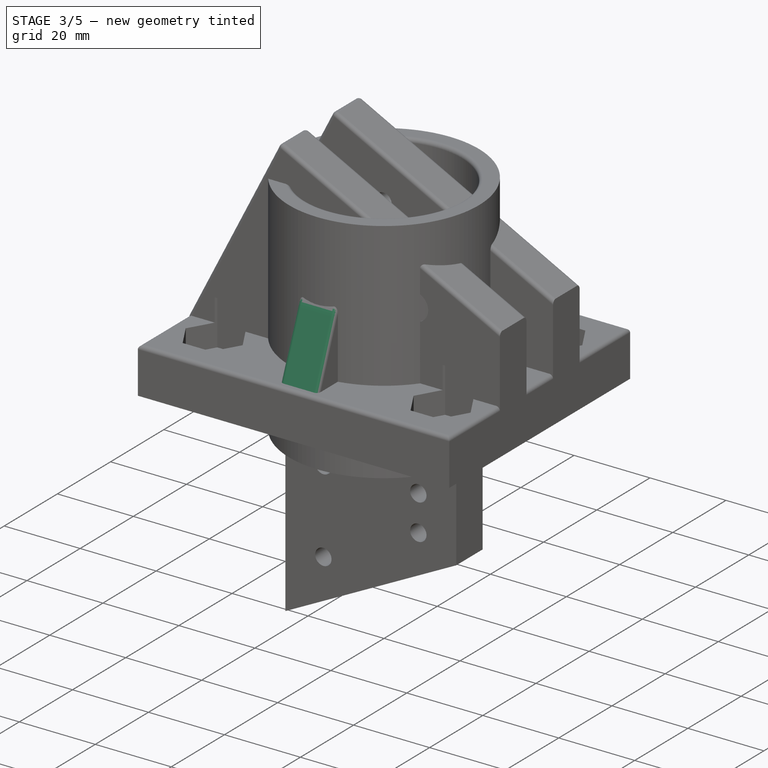
[diagram: stage 3 of 5 — iso view after this stage's code; geometry added in this stage tinted green]
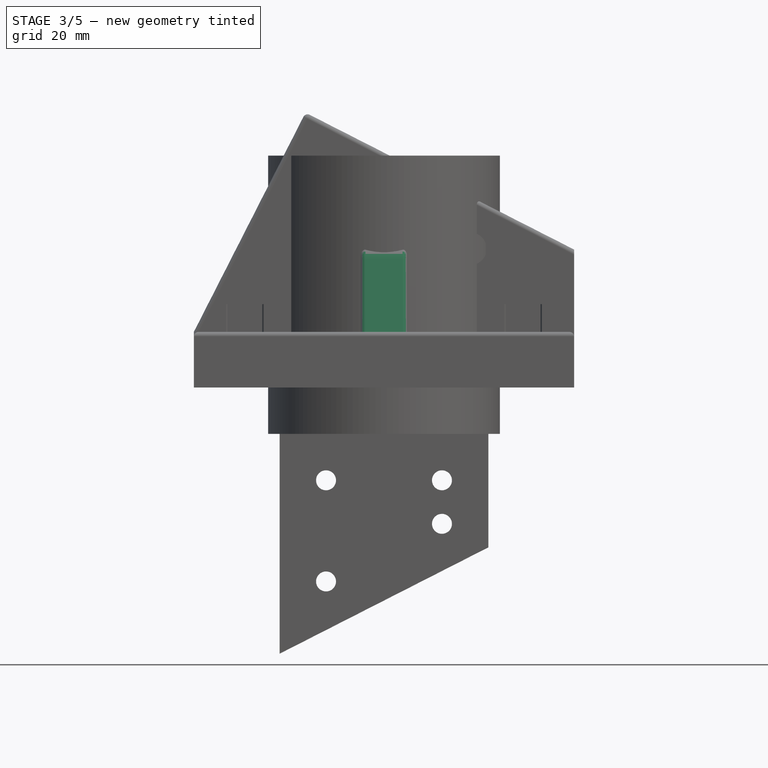
[diagram: stage 3 of 5 — front view after this stage's code; geometry added in this stage tinted green]
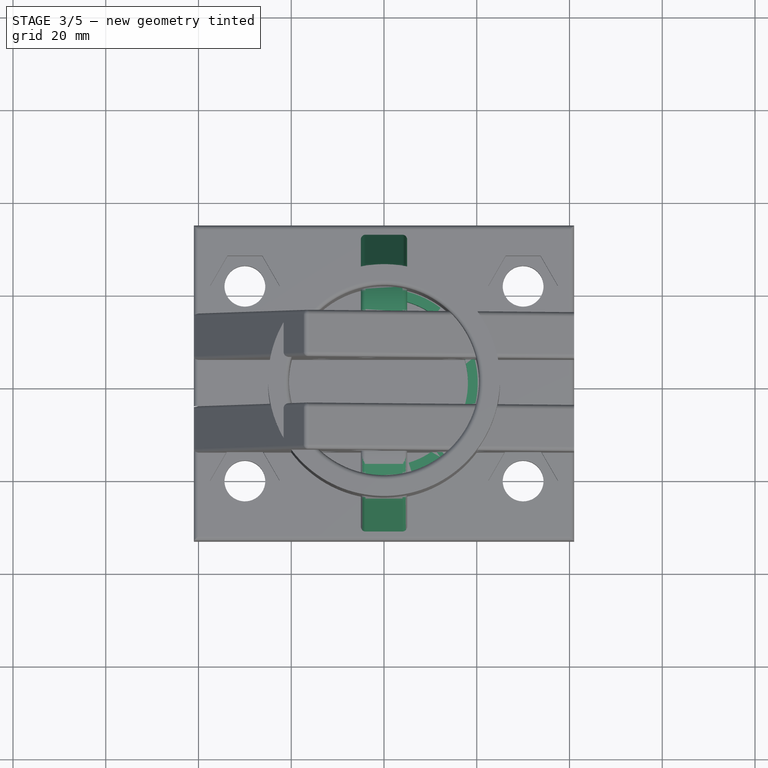
[diagram: stage 3 of 5 — top view after this stage's code; geometry added in this stage tinted green]
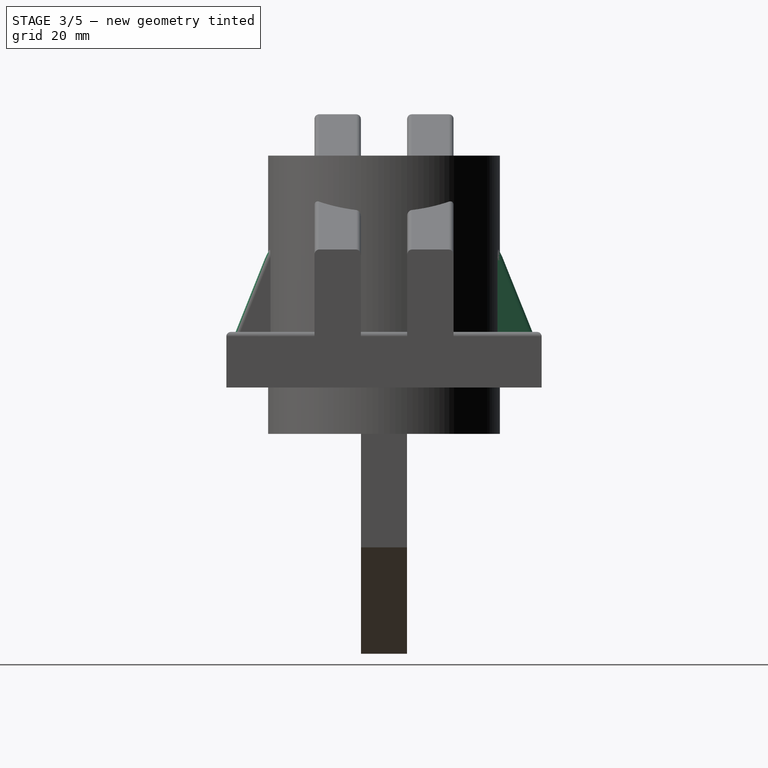
[diagram: stage 3 of 5 — right view after this stage's code; geometry added in this stage tinted green]
FEATURE [Sketcher::SketchObject] Sketch019
  ArcFitTolerance = 1e-06
  AttachmentSupport = -> [XY_Plane005]
  FullyConstrained = true
  MakeInternals = false
  MapMode = 5
  expr: Constraints[3] = Spreadsheet.tubeOD / 2
  sketch-geometry (2):
    g0: ArcOfCircle CenterX=1.271e-13 CenterY=0 CenterZ=0 NormalX=0 NormalY=0 NormalZ=1 AngleXU=0 Radius=25 StartAngle=4.71239 EndAngle=7.85398
    g1: LineSegment StartX=1.271e-13 StartY=25 StartZ=0 EndX=1.271e-13 EndY=-25 EndZ=0
  constraints (6):
    c: Vertical(g0,g0)
    c: Vertical(g0,g0)
    c: Coincident(g0,g-1)
    c: Radius(g0) = 25
    c: Coincident(g0,g1)
    c: Coincident(g0,g1)
FEATURE [PartDesign::Pad] Pad010  label="RightTop"
  Direction = (0,0,1)
  Length = 4
  Length2 = 10
  Profile = -> Sketch019
  ReferenceAxis = -> Sketch019 [N_Axis]
  Suppressed = false
  Type = 0
  expr: Length = Spreadsheet.collarTopHeight
FEATURE [Sketcher::SketchObject] Sketch020
  ArcFitTolerance = 1e-06
  AttachmentSupport = -> [Pad010]
  FullyConstrained = true
  MakeInternals = false
  MapMode = 5
  Placement = pos=(0,0,4) rot=(0,0,1;0rad)
  expr: Constraints[3] = Spreadsheet.spacerOD / 2
  sketch-geometry (2):
    g0: ArcOfCircle CenterX=-6.2e-15 CenterY=0 CenterZ=0 NormalX=0 NormalY=0 NormalZ=1 AngleXU=0 Radius=20.2 StartAngle=4.71239 EndAngle=7.85398
    g1: LineSegment StartX=-6.2e-15 StartY=20.2 StartZ=0 EndX=-6.2e-15 EndY=-20.2 EndZ=0
  constraints (6):
    c: Vertical(g0,g0)
    c: Vertical(g0,g0)
    c: Coincident(g0,g-1)
    c: Radius(g0) = 20.2
    c: Coincident(g1,g0)
    c: Coincident(g1,g0)
FEATURE [PartDesign::Pad] Pad011
  BaseFeature = -> Pad010
  Direction = (0,0,1)
  Length = 15
  Length2 = 10
  Profile = -> Sketch020
  ReferenceAxis = -> Sketch020 [N_Axis]
  Suppressed = false
  Type = 0
  expr: Length = Spreadsheet.spacerheight
FEATURE [Sketcher::SketchObject] Sketch021
  ArcFitTolerance = 1e-06
  AttachmentSupport = -> [Pad011]
  FullyConstrained = true
  MakeInternals = false
  MapMode = 5
  Placement = pos=(0,0,19) rot=(0,0,1;0rad)
  expr: Constraints[3] = Spreadsheet.spaceID / 2
  sketch-geometry (2):
    g0: ArcOfCircle CenterX=2.711e-13 CenterY=0 CenterZ=0 NormalX=0 NormalY=0 NormalZ=1 AngleXU=0 Radius=18.1 StartAngle=4.71239 EndAngle=7.85398
    g1: LineSegment StartX=2.711e-13 StartY=18.1 StartZ=0 EndX=2.711e-13 EndY=-18.1 EndZ=0
  constraints (6):
    c: Vertical(g0,g0)
    c: Vertical(g0,g0)
    c: Coincident(g0,g-1)
    c: Radius(g0) = 18.1
    c: Coincident(g1,g0)
    c: Coincident(g1,g0)
FEATURE [PartDesign::Pocket] Pocket009  label="RightlegHole"
  BaseFeature = -> Pad011
  Direction = (0,0,-1)
  Length = 5
  Length2 = 5
  Profile = -> Sketch021
  ReferenceAxis = -> Sketch021 [N_Axis]
  Suppressed = false
  Type = 2
FEATURE [Sketcher::SketchObject] Sketch022
  ArcFitTolerance = 1e-06
  AttachmentSupport = -> [Pocket009]
  ExternalGeometry = -> [Pocket009]
  FullyConstrained = true
  MakeInternals = false
  MapMode = 5
  Placement = pos=(-6.2e-15,0,0) rot=(0.57735,-0.57735,-0.57735;2.0944rad)
  expr: Constraints[22] = Spreadsheet.postwidth
  expr: Constraints[23] = Spreadsheet.postlength
  sketch-geometry (14):
    g0: GeomPoint [constr] X=-19.15 Y=19 Z=0
    g1: GeomPoint [constr] X=19.15 Y=19 Z=0
    g2: GeomPoint [constr] X=-19.15 Y=11.5 Z=0
    g3: GeomPoint [constr] X=19.15 Y=11.5 Z=0
    g4: LineSegment StartX=-19.6 StartY=13.5 StartZ=0 EndX=-19.6 EndY=9.5 EndZ=0
    g5: LineSegment StartX=-19.6 StartY=9.5 StartZ=0 EndX=-18.7 EndY=9.5 EndZ=0
    g6: LineSegment StartX=-18.7 StartY=9.5 StartZ=0 EndX=-18.7 EndY=13.5 EndZ=0
    g7: LineSegment StartX=-18.7 StartY=13.5 StartZ=0 EndX=-19.6 EndY=13.5 EndZ=0
    g8: LineSegment StartX=18.7 StartY=13.5 StartZ=0 EndX=18.7 EndY=9.5 EndZ=0
    g9: LineSegment StartX=18.7 StartY=9.5 StartZ=0 EndX=19.6 EndY=9.5 EndZ=0
    g10: LineSegment StartX=19.6 StartY=9.5 StartZ=0 EndX=19.6 EndY=13.5 EndZ=0
    g11: LineSegment StartX=19.6 StartY=13.5 StartZ=0 EndX=18.7 EndY=13.5 EndZ=0
    g12: GeomPoint [constr] X=-18.1 Y=11.5 Z=0
    g13: GeomPoint [constr] X=19.15 Y=13.5 Z=0
  constraints (29):
    c: Symmetric(g-3,g-4,g0)
    c: Symmetric(g-3,g-4,g2)
    c: Symmetric(g-5,g-6,g1)
    c: Symmetric(g-5,g-6,g3)
    c: Coincident(g4,g5)
    c: Coincident(g5,g6)
    c: Coincident(g6,g7)
    c: Coincident(g7,g4)
    c: Vertical(g4)
    c: Vertical(g6)
    c: Horizontal(g5)
    c: Horizontal(g7)
    c: Coincident(g8,g9)
    c: Coincident(g9,g10)
    c: Coincident(g10,g11)
    c: Coincident(g11,g8)
    c: Vertical(g8)
    c: Vertical(g10)
    c: Horizontal(g9)
    c: Horizontal(g11)
    c: Symmetric(g-4,g-4,g12)
    c: Symmetric(g4,g5,g2)
    c: Distance(g7,g7) = 0.9
    c: DistanceY(g6,g6) = 4
    c: Equal(g11,g7)
    c: Equal(g8,g6)
    c: Horizontal(g5,g8)
    c: Symmetric(g11,g11,g13)
    c: Vertical(g13,g1)
FEATURE [PartDesign::Pad] Pad012  label="RightPosts"
  BaseFeature = -> Pocket009
  Direction = (-1,0,0)
  Length = 2.6
  Length2 = 10
  Profile = -> Sketch022
  ReferenceAxis = -> Sketch022 [N_Axis]
  Suppressed = false
  Type = 0
  expr: Length = Spreadsheet.postdepth
FEATURE [PartDesign::Fillet] Fillet002
  Base = -> Pad012 [Edge46,Edge43,Edge38,Edge35]
  BaseFeature = -> Pad012
  Radius = 0.25
  SupportTransform = false
  Suppressed = false
  UseAllEdges = false
FEATURE [Sketcher::SketchObject] Sketch029
  ArcFitTolerance = 1e-06
  AttachmentSupport = -> [Pad014]
  ExternalGeometry = -> [Pad014]
  FullyConstrained = true
  MakeInternals = false
  MapMode = 5
  Placement = pos=(-5,0,0) rot=(0.57735,-0.57735,-0.57735;2.0944rad)
  sketch-geometry (5):
    g0: LineSegment StartX=15 StartY=35 StartZ=0 EndX=32 EndY=35 EndZ=0
    g1: LineSegment StartX=32 StartY=35 StartZ=0 EndX=32 EndY=12 EndZ=0
    g2: ArcOfCircle CenterX=15 CenterY=23.5 CenterZ=0 NormalX=0 NormalY=0 NormalZ=1 AngleXU=0 Radius=11.5 StartAngle=0.381278 EndAngle=1.5708
    g3: LineSegment StartX=25.6742 StartY=27.7792 StartZ=0 EndX=32 EndY=12 EndZ=0
    g4: GeomPoint [constr] X=32 Y=23.5 Z=0
  constraints (9):
    c: Coincident(g0,g-3)
    c: Coincident(g0,g-4)
    c: Coincident(g1,g0)
    c: Coincident(g1,g-4)
    c: Tangent(g2,g0) = 1.5708
    c: Coincident(g3,g1)
    c: Tangent(g3,g2) = 1.5708
    c: Symmetric(g1,g1,g4)
    c: Horizontal(g2,g4)
FEATURE [PartDesign::Pocket] Pocket014  label="GussetPocket"
  BaseFeature = -> Pad014
  Direction = (1,0,0)
  Length = 5
  Length2 = 5
  Profile = -> Sketch029
  ReferenceAxis = -> Sketch029 [N_Axis]
  Suppressed = false
  Type = 2
FEATURE [PartDesign::Mirrored] Mirrored  label="RearGusset"
  BaseFeature = -> Pocket014
  MirrorPlane = -> XZ_Plane
  Originals = -> [Pad014,Pocket014]
  Suppressed = false
  TransformMode = 0
FEATURE [PartDesign::Fillet] Fillet007
  Base = -> Mirrored [Edge312,Edge313,Edge314,Edge316,Edge208,Edge210,Edge206,Edge207]
  BaseFeature = -> Mirrored
  Radius = 1
  SupportTransform = false
  Suppressed = false
  UseAllEdges = false
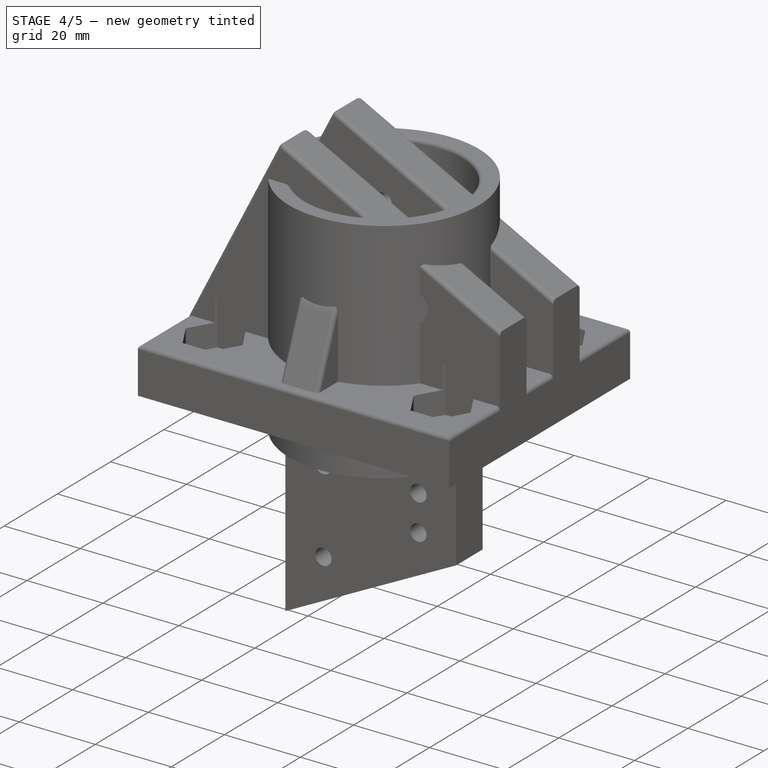
[diagram: stage 4 of 5 — iso view after this stage's code; geometry added in this stage tinted green]
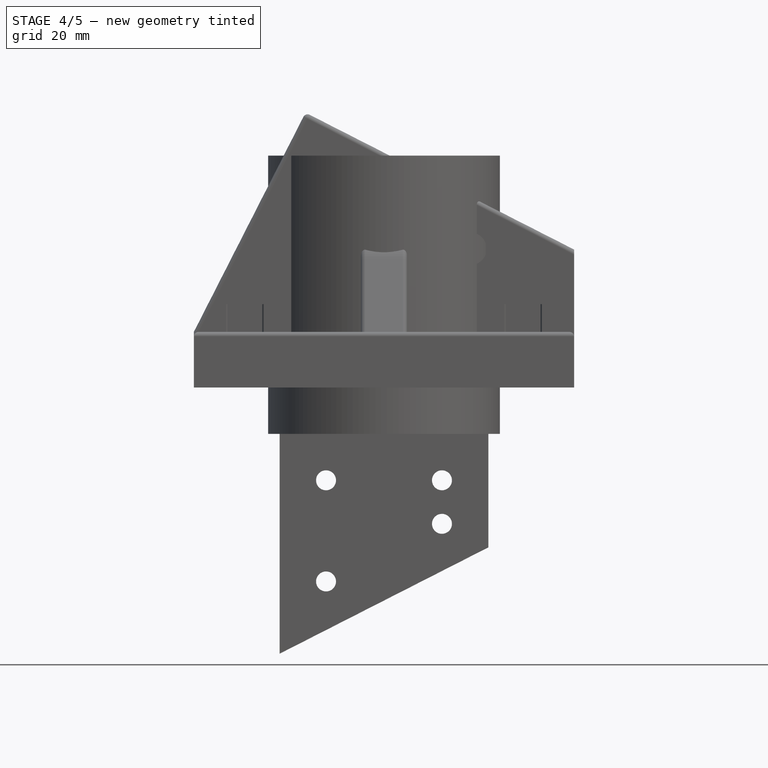
[diagram: stage 4 of 5 — front view after this stage's code; geometry added in this stage tinted green]
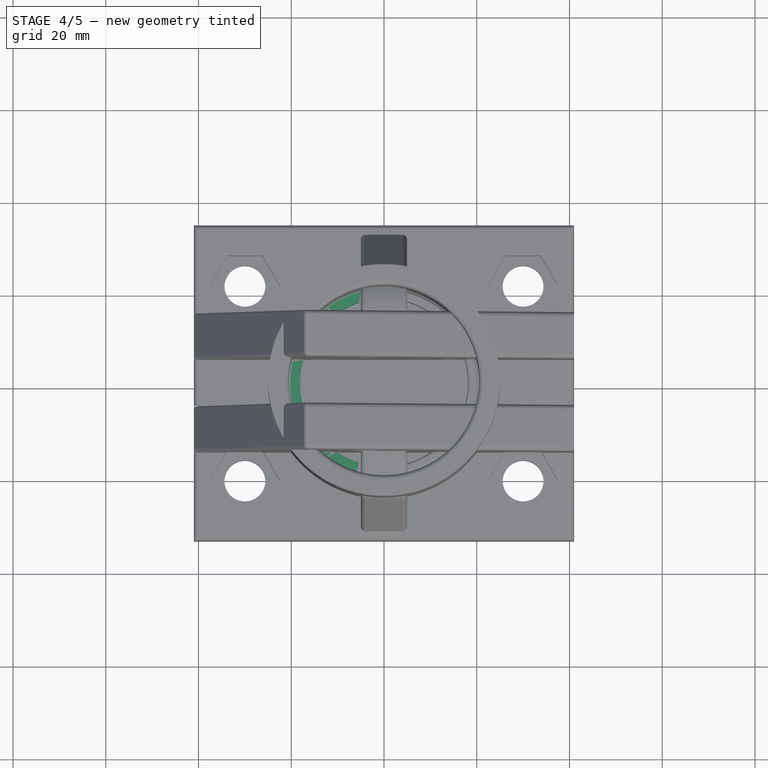
[diagram: stage 4 of 5 — top view after this stage's code; geometry added in this stage tinted green]
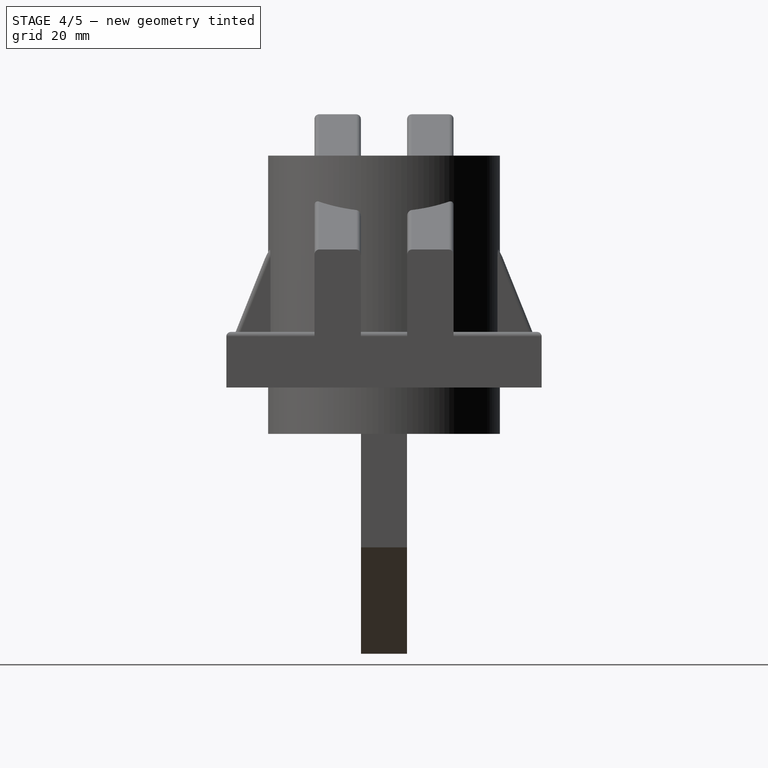
[diagram: stage 4 of 5 — right view after this stage's code; geometry added in this stage tinted green]
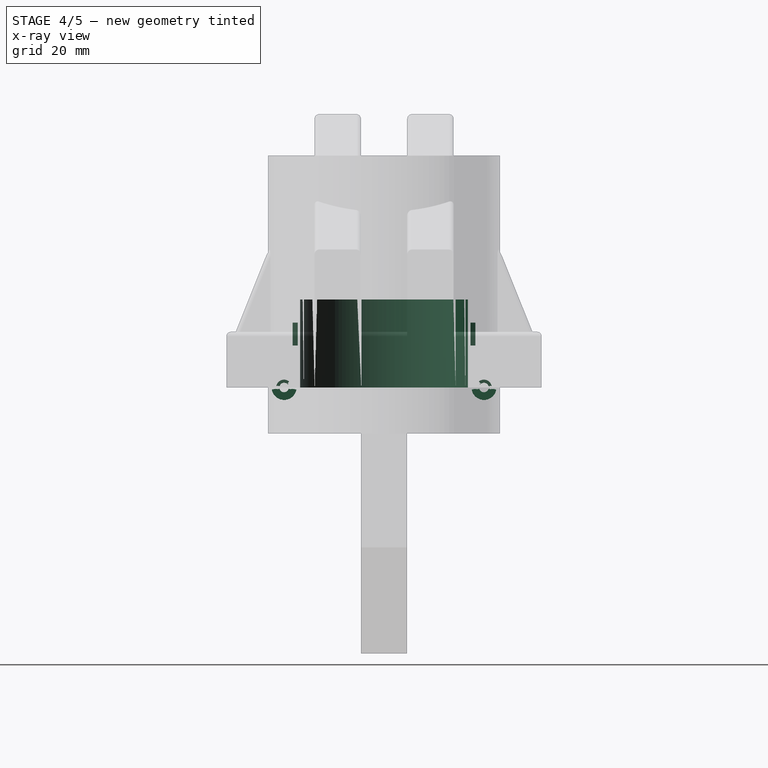
[diagram: stage 4 of 5 — x-ray composite at the right view; earlier geometry ghosted, this stage's added geometry solid]
FEATURE [PartDesign::Body] Body003  label="TestTube"
  AllowCompound = false
  Group = -> [Sketch012,Pad006]
  Origin = -> Origin003
  Tip = -> Pad006
FEATURE [Sketcher::SketchObject] Sketch013
  ArcFitTolerance = 1e-06
  AttachmentSupport = -> [XY_Plane004]
  FullyConstrained = true
  MakeInternals = false
  MapMode = 5
  expr: Constraints[3] = Spreadsheet.tubeOD / 2
  sketch-geometry (2):
    g0: ArcOfCircle CenterX=-4.17402e-11 CenterY=0 CenterZ=0 NormalX=0 NormalY=0 NormalZ=1 AngleXU=0 Radius=25 StartAngle=1.5708 EndAngle=4.71239
    g1: LineSegment StartX=-4.17402e-11 StartY=25 StartZ=0 EndX=-4.17402e-11 EndY=-25 EndZ=0
  constraints (6):
    c: Vertical(g0,g0)
    c: Vertical(g0,g0)
    c: Coincident(g0,g-1)
    c: Radius(g0) = 25
    c: Coincident(g1,g0)
    c: Coincident(g1,g0)
FEATURE [PartDesign::Pad] Pad007  label="LeftTop"
  Direction = (0,0,1)
  Length = 4
  Length2 = 10
  Profile = -> Sketch013
  ReferenceAxis = -> Sketch013 [N_Axis]
  Suppressed = false
  Type = 0
  expr: Length = Spreadsheet.collarTopHeight
FEATURE [Sketcher::SketchObject] Sketch014
  ArcFitTolerance = 1e-06
  AttachmentSupport = -> [Pad007]
  FullyConstrained = true
  MakeInternals = false
  MapMode = 5
  Placement = pos=(0,0,4) rot=(0,0,1;0rad)
  expr: Constraints[3] = Spreadsheet.spacerOD / 2
  sketch-geometry (2):
    g0: ArcOfCircle CenterX=-1.86e-14 CenterY=0 CenterZ=0 NormalX=0 NormalY=0 NormalZ=1 AngleXU=0 Radius=20.2 StartAngle=1.5708 EndAngle=4.71239
    g1: LineSegment StartX=-1.86e-14 StartY=20.2 StartZ=0 EndX=-1.86e-14 EndY=-20.2 EndZ=0
  constraints (6):
    c: Vertical(g0,g0)
    c: Vertical(g0,g0)
    c: Coincident(g0,g-1)
    c: Radius(g0) = 20.2
    c: Coincident(g1,g0)
    c: Coincident(g1,g0)
FEATURE [PartDesign::Pad] Pad008  label="LeftSpacer"
  BaseFeature = -> Pad007
  Direction = (0,0,1)
  Length = 15
  Length2 = 10
  Profile = -> Sketch014
  ReferenceAxis = -> Sketch014 [N_Axis]
  Suppressed = false
  Type = 0
  expr: Length = Spreadsheet.spacerheight
FEATURE [Sketcher::SketchObject] Sketch015
  ArcFitTolerance = 1e-06
  AttachmentSupport = -> [Pad008]
  FullyConstrained = true
  MakeInternals = false
  MapMode = 5
  Placement = pos=(0,0,19) rot=(0,0,1;0rad)
  expr: Constraints[3] = Spreadsheet.spaceID / 2
  sketch-geometry (2):
    g0: ArcOfCircle CenterX=-3e-14 CenterY=0 CenterZ=0 NormalX=0 NormalY=0 NormalZ=1 AngleXU=0 Radius=18.1 StartAngle=1.5708 EndAngle=4.71239
    g1: LineSegment StartX=-3e-14 StartY=18.1 StartZ=0 EndX=-3e-14 EndY=-18.1 EndZ=0
  constraints (6):
    c: Vertical(g0,g0)
    c: Vertical(g0,g0)
    c: Coincident(g0,g-1)
    c: Radius(g0) = 18.1
    c: Coincident(g1,g0)
    c: Coincident(g1,g0)
FEATURE [PartDesign::Pocket] Pocket006  label="LegHole"
  BaseFeature = -> Pad008
  Direction = (0,0,-1)
  Length = 5
  Length2 = 5
  Profile = -> Sketch015
  ReferenceAxis = -> Sketch015 [N_Axis]
  Suppressed = false
  Type = 2
FEATURE [Sketcher::SketchObject] Sketch016
  ArcFitTolerance = 1e-06
  AttachmentSupport = -> [Pocket006]
  ExternalGeometry = -> [Pocket006]
  FullyConstrained = true
  MakeInternals = false
  MapMode = 5
  Placement = pos=(-1.86e-14,0,0) rot=(0.57735,0.57735,0.57735;2.0944rad)
  expr: Constraints[27] = Spreadsheet.guidewidth
  expr: Constraints[28] = Spreadsheet.guidelength
  sketch-geometry (16):
    g0: LineSegment StartX=-19.7 StartY=14 StartZ=0 EndX=-19.7 EndY=9 EndZ=0
    g1: LineSegment StartX=-19.7 StartY=9 StartZ=0 EndX=-18.6 EndY=9 EndZ=0
    g2: LineSegment StartX=-18.6 StartY=9 StartZ=0 EndX=-18.6 EndY=14 EndZ=0
    g3: LineSegment StartX=-18.6 StartY=14 StartZ=0 EndX=-19.7 EndY=14 EndZ=0
    g4: LineSegment StartX=18.6 StartY=14 StartZ=0 EndX=18.6 EndY=9 EndZ=0
    g5: LineSegment StartX=18.6 StartY=9 StartZ=0 EndX=19.7 EndY=9 EndZ=0
    g6: LineSegment StartX=19.7 StartY=9 StartZ=0 EndX=19.7 EndY=14 EndZ=0
    g7: LineSegment StartX=19.7 StartY=14 StartZ=0 EndX=18.6 EndY=14 EndZ=0
    g8: GeomPoint [constr] X=-18.1 Y=11.5 Z=0
    g9: GeomPoint [constr] X=18.1 Y=11.5 Z=0
    g10: GeomPoint [constr] X=-19.15 Y=19 Z=0
    g11: GeomPoint [constr] X=19.15 Y=19 Z=0
    g12: GeomPoint [constr] X=-19.15 Y=14 Z=0
    g13: GeomPoint [constr] X=19.15 Y=14 Z=0
    g14: GeomPoint [constr] X=-18.6 Y=11.5 Z=0
    g15: GeomPoint [constr] X=18.6 Y=11.5 Z=0
  constraints (32):
    c: Coincident(g0,g1)
    c: Coincident(g1,g2)
    c: Coincident(g2,g3)
    c: Coincident(g3,g0)
    c: Vertical(g0)
    c: Vertical(g2)
    c: Horizontal(g1)
    c: Horizontal(g3)
    c: Coincident(g4,g5)
    c: Coincident(g5,g6)
    c: Coincident(g6,g7)
    c: Coincident(g7,g4)
    c: Vertical(g4)
    c: Vertical(g6)
    c: Horizontal(g5)
    c: Horizontal(g7)
    c: Symmetric(g-4,g-4,g8)
    c: Symmetric(g-5,g-5,g9)
    c: Symmetric(g-3,g-4,g10)
    c: Symmetric(g-5,g-6,g11)
    c: Symmetric(g3,g3,g12)
    c: Symmetric(g7,g7,g13)
    c: Symmetric(g2,g2,g14)
    c: Symmetric(g4,g4,g15)
    c: Vertical(g10,g12)
    c: Vertical(g13,g11)
    c: Horizontal(g14,g8)
    c: DistanceX(g1,g1) = 1.1
    c: DistanceY(g0,g0) = 5
    c: Horizontal(g4,g2)
    c: Horizontal(g4,g1)
    c: Equal(g1,g5)
FEATURE [PartDesign::Pocket] Pocket007  label="GuideHoles"
  BaseFeature = -> Pocket006
  Direction = (-1,0,0)
  Length = 3
  Length2 = 5
  Profile = -> Sketch016
  ReferenceAxis = -> Sketch016 [N_Axis]
  Suppressed = false
  Type = 0
  expr: Length = Spreadsheet.guidedepth
FEATURE [PartDesign::Body] Body004  label="CollarLeft"
  AllowCompound = false
  Group = -> [Sketch013,Pad007,Sketch014,Pad008,Sketch015,Pocket006,Sketch016,Pocket007,Sketch017,Pad009,Sketch018,Pocket008,Fillet003,Fillet004]
  Origin = -> Origin004
  Placement = pos=(49,0,115) rot=(0,1,0;3.59538rad)
  Tip = -> Fillet004
FEATURE [Sketcher::SketchObject] Sketch023
  ArcFitTolerance = 1e-06
  AttachmentSupport = -> [Fillet002]
  ExternalGeometry = -> [Fillet002]
  FullyConstrained = true
  MakeInternals = false
  MapMode = 5
  Placement = pos=(1.271e-13,0,0) rot=(0.57735,-0.57735,-0.57735;2.0944rad)
  expr: Constraints[0] = Spreadsheet.m2insert
  sketch-geometry (6):
    g0: Circle [constr] CenterX=-21.55 CenterY=-5.4e-15 CenterZ=0 NormalX=0 NormalY=0 NormalZ=1 AngleXU=0 Radius=1.7
    g1: Circle [constr] CenterX=21.55 CenterY=-4.9e-15 CenterZ=0 NormalX=0 NormalY=0 NormalZ=1 AngleXU=0 Radius=1.7
    g2: ArcOfCircle CenterX=-21.55 CenterY=-5.4e-15 CenterZ=0 NormalX=0 NormalY=0 NormalZ=1 AngleXU=0 Radius=2.7 StartAngle=3.14159 EndAngle=6.28319
    g3: ArcOfCircle CenterX=21.55 CenterY=-4.9e-15 CenterZ=0 NormalX=0 NormalY=0 NormalZ=1 AngleXU=0 Radius=2.7 StartAngle=3.14159 EndAngle=6.28319
    g4: LineSegment StartX=-24.25 StartY=-5.4e-15 StartZ=0 EndX=-18.85 EndY=-5.4e-15 EndZ=0
    g5: LineSegment StartX=18.85 StartY=-4.9e-15 StartZ=0 EndX=24.25 EndY=-4.9e-15 EndZ=0
  constraints (16):
    c: Diameter(g0) = 3.4
    c: Equal(g0,g1)
    c: Symmetric(g-3,g-3,g0)
    c: Symmetric(g-4,g-4,g1)
    c: Horizontal(g4)
    c: Horizontal(g5)
    c: Horizontal(g2,g2)
    c: Horizontal(g3,g3)
    c: Coincident(g2,g0)
    c: Distance(g0,g2) = 1
    c: Coincident(g4,g2)
    c: Coincident(g4,g2)
    c: Coincident(g1,g3)
    c: Equal(g2,g3)
    c: Coincident(g5,g3)
    c: Coincident(g5,g3)
FEATURE [PartDesign::Pad] Pad013  label="RightBoltSupport"
  BaseFeature = -> Fillet002
  Direction = (-1,0,0)
  Length = 4
  Length2 = 10
  Profile = -> Sketch023
  ReferenceAxis = -> Sketch023 [N_Axis]
  Reversed = true
  Suppressed = false
  Type = 0
FEATURE [Sketcher::SketchObject] Sketch024
  ArcFitTolerance = 1e-06
  AttachmentSupport = -> [Pad013]
  ExternalGeometry = -> [Pad013]
  FullyConstrained = true
  MakeInternals = false
  MapMode = 5
  Placement = pos=(4,0,0) rot=(0.57735,0.57735,0.57735;2.0944rad)
  expr: Constraints[0] = Spreadsheet.m2hole
  sketch-geometry (2):
    g0: Circle CenterX=-21.55 CenterY=0 CenterZ=0 NormalX=0 NormalY=0 NormalZ=1 AngleXU=0 Radius=1
    g1: Circle CenterX=21.55 CenterY=0 CenterZ=0 NormalX=0 NormalY=0 NormalZ=1 AngleXU=0 Radius=1
  constraints (4):
    c: Diameter(g0) = 2
    c: Equal(g0,g1)
    c: Coincident(g0,g-3)
    c: Coincident(g1,g-4)
FEATURE [PartDesign::Pocket] Pocket010  label="RightBoltHoles"
  BaseFeature = -> Pad013
  Direction = (-1,0,0)
  Length = 5
  Length2 = 5
  Midplane = true
  Profile = -> Sketch024
  ReferenceAxis = -> Sketch024 [N_Axis]
  Suppressed = false
  Type = 1
FEATURE [Sketcher::SketchObject] Sketch025
  ArcFitTolerance = 1e-06
  AttachmentSupport = -> [Pocket010]
  ExternalGeometry = -> [Pocket010]
  FullyConstrained = true
  MakeInternals = false
  MapMode = 5
  Placement = pos=(4,0,0) rot=(0.57735,0.57735,0.57735;2.0944rad)
  expr: Constraints[0] = Spreadsheet.m2head
  sketch-geometry (2):
    g0: Circle CenterX=-21.55 CenterY=0 CenterZ=0 NormalX=0 NormalY=0 NormalZ=1 AngleXU=0 Radius=1.7
    g1: Circle CenterX=21.55 CenterY=0 CenterZ=0 NormalX=0 NormalY=0 NormalZ=1 AngleXU=0 Radius=1.7
  constraints (4):
    c: Diameter(g0) = 3.4
    c: Equal(g0,g1)
    c: Coincident(g0,g-3)
    c: Coincident(g1,g-4)
FEATURE [PartDesign::Pocket] Pocket011  label="BoltHead"
  BaseFeature = -> Pocket010
  Direction = (-1,0,0)
  Length = 13
  Length2 = 1
  Profile = -> Sketch025
  ReferenceAxis = -> Sketch025 [N_Axis]
  Reversed = true
  Suppressed = false
  Type = 4
FEATURE [PartDesign::Fillet] Fillet005
  Base = -> Pocket011 [Edge37,Edge43]
  BaseFeature = -> Pocket011
  Radius = 0.5
  SupportTransform = false
  Suppressed = false
  UseAllEdges = false
FEATURE [PartDesign::Fillet] Fillet006
  Base = -> Fillet005 [Edge66,Edge60,Edge23]
  BaseFeature = -> Fillet005
  Radius = 0.5
  SupportTransform = false
  Suppressed = false
  UseAllEdges = false
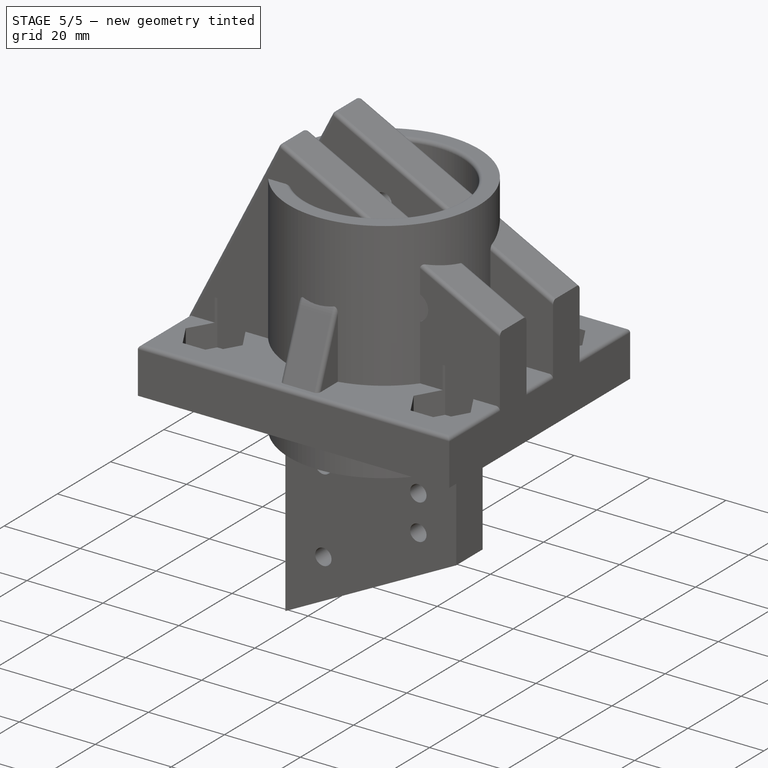
[diagram: stage 5 of 5 — iso view after this stage's code; geometry added in this stage tinted green]
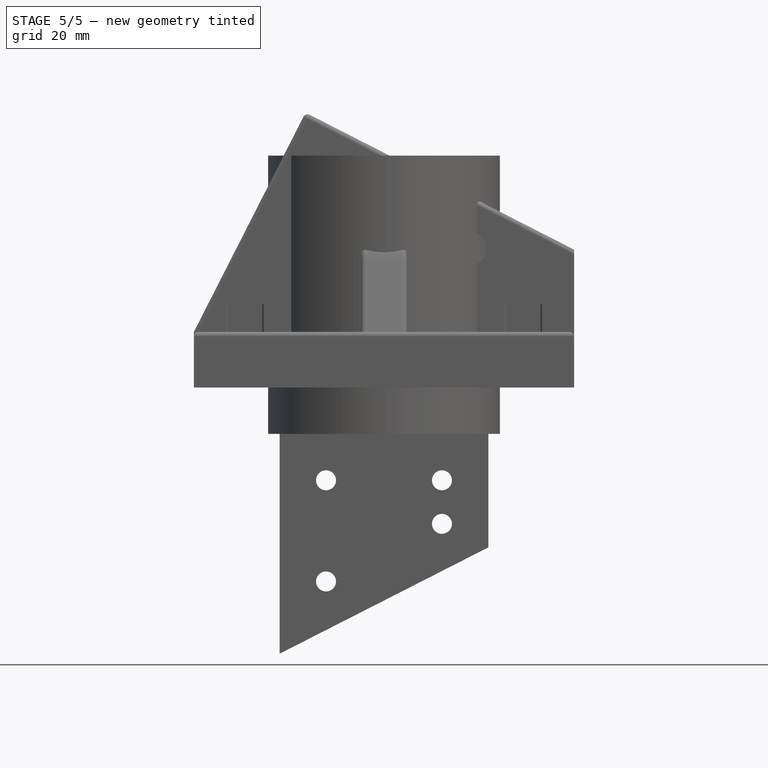
[diagram: stage 5 of 5 — front view after this stage's code; geometry added in this stage tinted green]
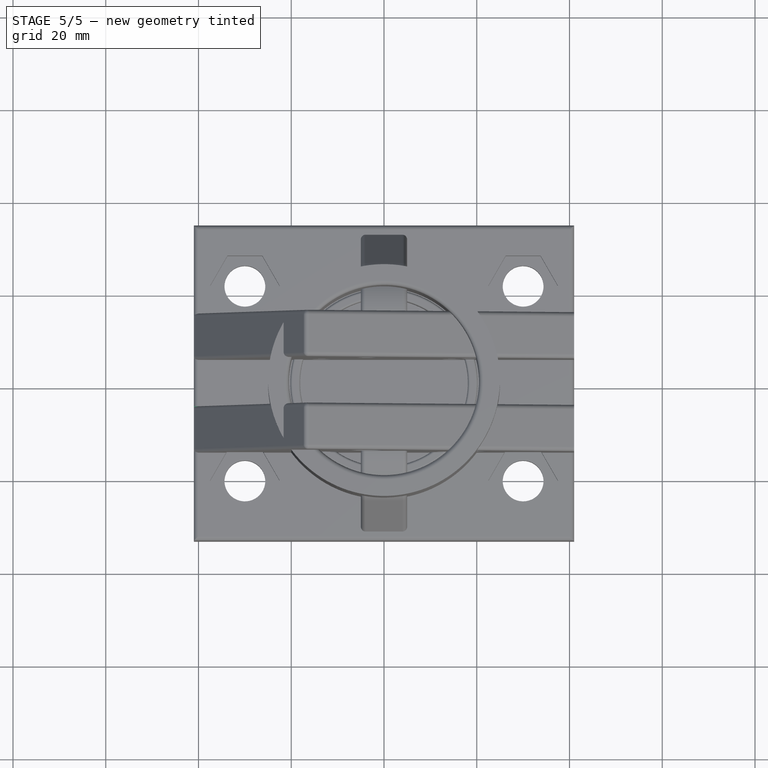
[diagram: stage 5 of 5 — top view after this stage's code; geometry added in this stage tinted green]
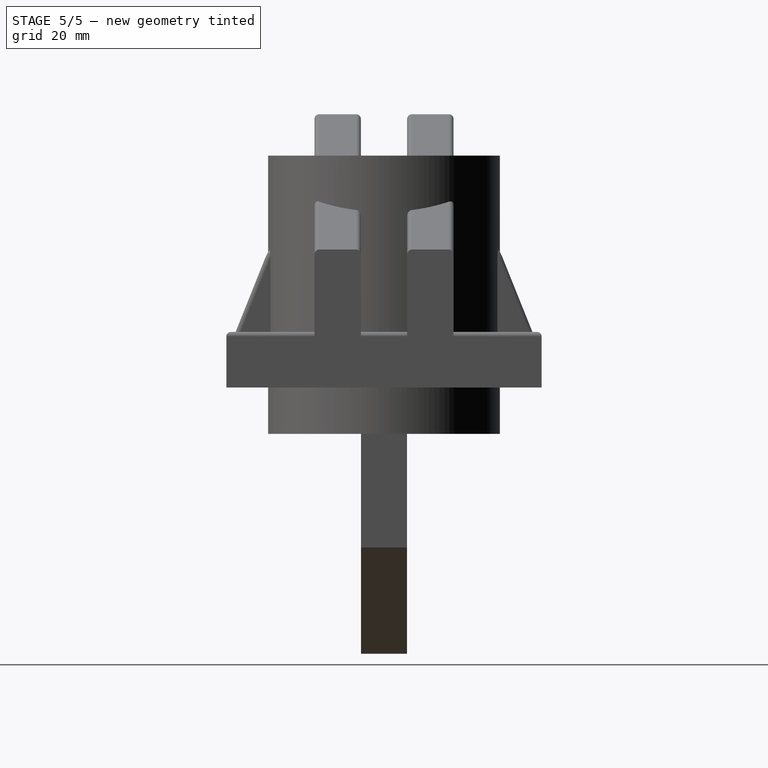
[diagram: stage 5 of 5 — right view after this stage's code; geometry added in this stage tinted green]
FEATURE [Sketcher::SketchObject] Sketch009
  ArcFitTolerance = 1e-06
  AttachmentSupport = -> [XY_Plane002]
  FullyConstrained = true
  MakeInternals = false
  MapMode = 5
  expr: Constraints[10] = Spreadsheet.baseY
  expr: Constraints[9] = Spreadsheet.baseX
  sketch-geometry (4):
    g0: LineSegment StartX=-41 StartY=34 StartZ=0 EndX=-41 EndY=-34 EndZ=0
    g1: LineSegment StartX=-41 StartY=-34 StartZ=0 EndX=41 EndY=-34 EndZ=0
    g2: LineSegment StartX=41 StartY=-34 StartZ=0 EndX=41 EndY=34 EndZ=0
    g3: LineSegment StartX=41 StartY=34 StartZ=0 EndX=-41 EndY=34 EndZ=0
  constraints (11):
    c: Coincident(g0,g1)
    c: Coincident(g1,g2)
    c: Coincident(g2,g3)
    c: Coincident(g3,g0)
    c: Vertical(g0)
    c: Vertical(g2)
    c: Horizontal(g1)
    c: Horizontal(g3)
    c: Symmetric(g0,g1,g-1)
    c: DistanceX(g3,g3) = 82
    c: DistanceY(g0,g0) = 68
FEATURE [PartDesign::Pad] Pad005  label="Base001"
  Direction = (0,0,1)
  Length = 2
  Length2 = 10
  Profile = -> Sketch009
  ReferenceAxis = -> Sketch009 [N_Axis]
  Suppressed = false
  Type = 0
FEATURE [Sketcher::SketchObject] Sketch010
  ArcFitTolerance = 1e-06
  AttachmentSupport = -> [Pad005]
  FullyConstrained = true
  MakeInternals = false
  MapMode = 5
  Placement = pos=(0,0,2) rot=(0,0,1;0rad)
  expr: Constraints[10] = Spreadsheet.boltYcenters
  expr: Constraints[11] = Spreadsheet.m8hole
  expr: Constraints[9] = Spreadsheet.boltXcenters
  sketch-geometry (8):
    g0: LineSegment [constr] StartX=-30 StartY=21 StartZ=0 EndX=-30 EndY=-21 EndZ=0
    g1: LineSegment [constr] StartX=-30 StartY=-21 StartZ=0 EndX=30 EndY=-21 EndZ=0
    g2: LineSegment [constr] StartX=30 StartY=-21 StartZ=0 EndX=30 EndY=21 EndZ=0
    g3: LineSegment [constr] StartX=30 StartY=21 StartZ=0 EndX=-30 EndY=21 EndZ=0
    g4: Circle CenterX=-30 CenterY=21 CenterZ=0 NormalX=0 NormalY=0 NormalZ=1 AngleXU=0 Radius=4.4
    g5: Circle CenterX=30 CenterY=21 CenterZ=0 NormalX=0 NormalY=0 NormalZ=1 AngleXU=0 Radius=4.4
    g6: Circle CenterX=30 CenterY=-21 CenterZ=0 NormalX=0 NormalY=0 NormalZ=1 AngleXU=0 Radius=4.4
    g7: Circle CenterX=-30 CenterY=-21 CenterZ=0 NormalX=0 NormalY=0 NormalZ=1 AngleXU=0 Radius=4.4
  constraints (19):
    c: Coincident(g0,g1)
    c: Coincident(g1,g2)
    c: Coincident(g2,g3)
    c: Coincident(g3,g0)
    c: Vertical(g0)
    c: Vertical(g2)
    c: Horizontal(g1)
    c: Horizontal(g3)
    c: Symmetric(g0,g1,g-1)
    c: DistanceX(g3,g3) = 60
    c: DistanceY(g0,g0) = 42
    c: Diameter(g4) = 8.8
    c: Equal(g4,g5)
    c: Equal(g5,g6)
    c: Equal(g6,g7)
    c: Coincident(g4,g0)
    c: Coincident(g5,g2)
    c: Coincident(g6,g1)
    c: Coincident(g7,g0)
FEATURE [PartDesign::Pocket] Pocket004  label="holes"
  BaseFeature = -> Pad005
  Direction = (0,0,-1)
  Length = 5
  Length2 = 5
  Profile = -> Sketch010
  ReferenceAxis = -> Sketch010 [N_Axis]
  Suppressed = false
  Type = 2
FEATURE [Sketcher::SketchObject] Sketch011
  ArcFitTolerance = 1e-06
  AttachmentSupport = -> [Pocket004]
  FullyConstrained = false
  MakeInternals = false
  MapMode = 5
  Placement = pos=(0,0,2) rot=(0,0,1;0rad)
  sketch-geometry (4):
    g0: LineSegment StartX=-21.3628 StartY=18.7906 StartZ=0 EndX=-21.3628 EndY=-19.2094 EndZ=0
    g1: LineSegment StartX=-21.3628 StartY=-19.2094 StartZ=0 EndX=21.6372 EndY=-19.2094 EndZ=0
    g2: LineSegment StartX=21.6372 StartY=-19.2094 StartZ=0 EndX=21.6372 EndY=18.7906 EndZ=0
    g3: LineSegment StartX=21.6372 StartY=18.7906 StartZ=0 EndX=-21.3628 EndY=18.7906 EndZ=0
  constraints (10):
    c: Coincident(g0,g1)
    c: Coincident(g1,g2)
    c: Coincident(g2,g3)
    c: Coincident(g3,g0)
    c: Vertical(g0)
    c: Vertical(g2)
    c: Horizontal(g1)
    c: Horizontal(g3)
    c: DistanceX(g3,g3) = 43
    c: DistanceY(g0,g0) = 38
FEATURE [PartDesign::Pocket] Pocket005  label="waste"
  BaseFeature = -> Pocket004
  Direction = (0,0,-1)
  Length = 5
  Length2 = 5
  Profile = -> Sketch011
  ReferenceAxis = -> Sketch011 [N_Axis]
  Suppressed = false
  Type = 2
FEATURE [PartDesign::Body] Body002  label="TestBase"
  AllowCompound = false
  Group = -> [Sketch009,Pad005,Sketch010,Pocket004,Sketch011,Pocket005]
  Origin = -> Origin002
  Tip = -> Pocket005
FEATURE [Sketcher::SketchObject] Sketch012
  ArcFitTolerance = 1e-06
  AttachmentSupport = -> [XY_Plane003]
  FullyConstrained = true
  MakeInternals = false
  MapMode = 5
  expr: Constraints[1] = Spreadsheet.tubeID
  expr: Constraints[3] = Spreadsheet.tubeWall
  sketch-geometry (2):
    g0: Circle CenterX=0 CenterY=0 CenterZ=0 NormalX=0 NormalY=0 NormalZ=1 AngleXU=0 Radius=20.5
    g1: Circle CenterX=0 CenterY=0 CenterZ=0 NormalX=0 NormalY=0 NormalZ=1 AngleXU=0 Radius=25
  constraints (4):
    c: Coincident(g0,g-1)
    c: Diameter(g0) = 41
    c: Coincident(g1,g0)
    c: Distance(g0,g1) = 4.5
FEATURE [PartDesign::Pad] Pad006
  Direction = (0,0,1)
  Length = 3
  Length2 = 10
  Profile = -> Sketch012
  ReferenceAxis = -> Sketch012 [N_Axis]
  Suppressed = false
  Type = 0
FEATURE [Sketcher::SketchObject] Sketch017
  ArcFitTolerance = 1e-06
  AttachmentSupport = -> [Pocket007]
  ExternalGeometry = -> [Pocket007]
  FullyConstrained = true
  MakeInternals = false
  MapMode = 5
  Placement = pos=(-4.17402e-11,0,0) rot=(0.57735,0.57735,0.57735;2.0944rad)
  expr: Constraints[2] = Spreadsheet.m2insert
  sketch-geometry (7):
    g0: GeomPoint [constr] X=-21.55 Y=2 Z=0
    g1: GeomPoint [constr] X=21.55 Y=2 Z=0
    g2: Circle [constr] CenterX=-21.55 CenterY=-7.6e-15 CenterZ=0 NormalX=0 NormalY=0 NormalZ=1 AngleXU=0 Radius=1.7
    g3: ArcOfCircle CenterX=-21.55 CenterY=-7.6e-15 CenterZ=0 NormalX=0 NormalY=0 NormalZ=1 AngleXU=0 Radius=2.7 StartAngle=3.14159 EndAngle=6.28319
    g4: LineSegment StartX=-24.25 StartY=-7.6e-15 StartZ=0 EndX=-18.85 EndY=-7.6e-15 EndZ=0
    g5: ArcOfCircle CenterX=21.55 CenterY=-8.7e-15 CenterZ=0 NormalX=0 NormalY=0 NormalZ=1 AngleXU=0 Radius=2.7 StartAngle=3.14159 EndAngle=6.28319
    g6: LineSegment StartX=18.85 StartY=-8.7e-15 StartZ=0 EndX=24.25 EndY=-8.7e-15 EndZ=0
  constraints (16):
    c: Symmetric(g-3,g-4,g0)
    c: Symmetric(g-6,g-5,g1)
    c: Diameter(g2) = 3.4
    c: Symmetric(g-3,g-4,g2)
    c: Horizontal(g3,g3)
    c: Horizontal(g3,g3)
    c: Coincident(g3,g2)
    c: Distance(g2,g3) = 1
    c: Coincident(g4,g3)
    c: Coincident(g4,g3)
    c: Horizontal(g5,g5)
    c: Horizontal(g5,g5)
    c: Symmetric(g-5,g-6,g5)
    c: Equal(g3,g5)
    c: Coincident(g6,g5)
    c: Coincident(g6,g5)
FEATURE [PartDesign::Pad] Pad009  label="BoltInsertSupport"
  BaseFeature = -> Pocket007
  Direction = (1,0,0)
  Length = 5
  Length2 = 10
  Profile = -> Sketch017
  ReferenceAxis = -> Sketch017 [N_Axis]
  Reversed = true
  Suppressed = false
  Type = 0
FEATURE [Sketcher::SketchObject] Sketch018
  ArcFitTolerance = 1e-06
  AttachmentSupport = -> [Pad009]
  ExternalGeometry = -> [Pad009]
  FullyConstrained = true
  MakeInternals = false
  MapMode = 5
  Placement = pos=(-4.17402e-11,0,0) rot=(0.57735,0.57735,0.57735;2.0944rad)
  expr: Constraints[0] = Spreadsheet.m2insert
  sketch-geometry (2):
    g0: Circle CenterX=-21.55 CenterY=0 CenterZ=0 NormalX=0 NormalY=0 NormalZ=1 AngleXU=0 Radius=1.7
    g1: Circle CenterX=21.55 CenterY=0 CenterZ=0 NormalX=0 NormalY=0 NormalZ=1 AngleXU=0 Radius=1.7
  constraints (4):
    c: Diameter(g0) = 3.4
    c: Coincident(g0,g-3)
    c: Equal(g0,g1)
    c: Coincident(g1,g-4)
FEATURE [PartDesign::Pocket] Pocket008  label="Insertholes"
  BaseFeature = -> Pad009
  Direction = (-1,0,0)
  Length = 4
  Length2 = 5
  Profile = -> Sketch018
  ReferenceAxis = -> Sketch018 [N_Axis]
  Suppressed = false
  Type = 0
FEATURE [PartDesign::Fillet] Fillet003  label="FilletHoles"
  Base = -> Pocket008 [Edge48,Edge50,Edge38,Edge40]
  BaseFeature = -> Pocket008
  Radius = 0.25
  SupportTransform = false
  Suppressed = false
  UseAllEdges = false
FEATURE [PartDesign::Fillet] Fillet004  label="FilletSpacer"
  Base = -> Fillet003 [Edge51,Edge36,Edge35]
  BaseFeature = -> Fillet003
  Radius = 0.5
  SupportTransform = false
  Suppressed = false
  UseAllEdges = false
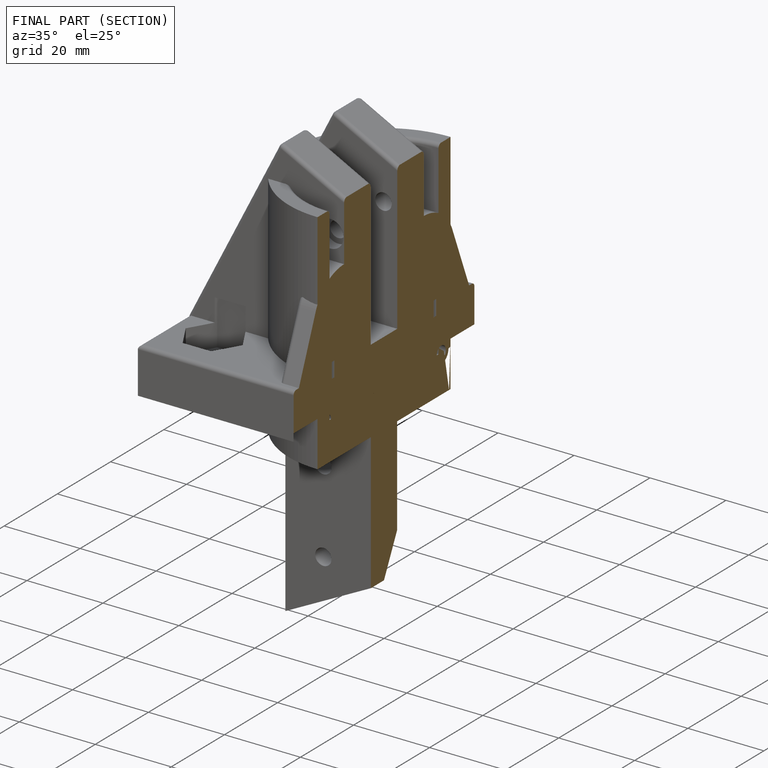
[diagram: finished part — half-section view (interior)]
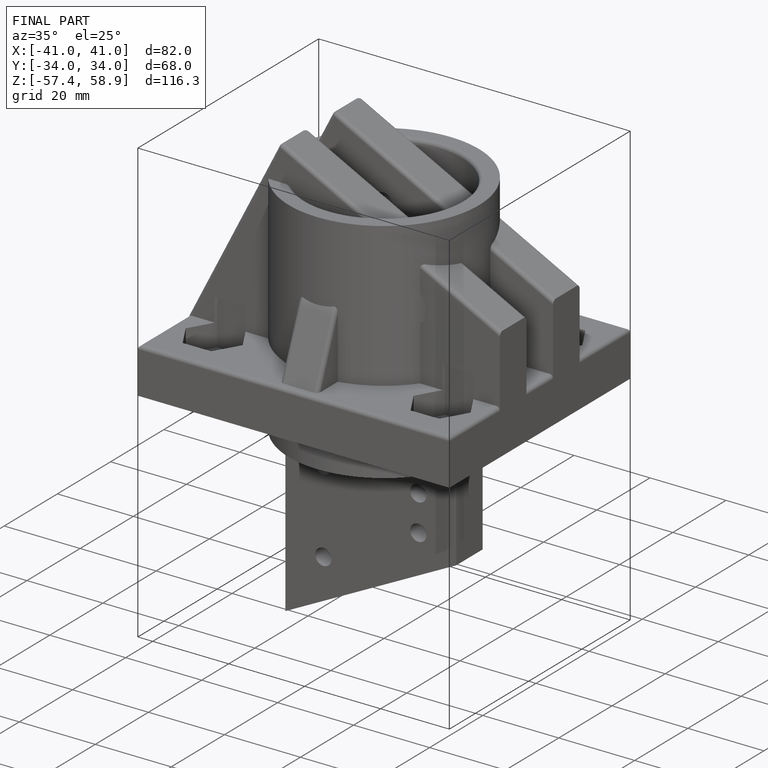
[diagram: finished part — iso view with bounding-box wireframe]
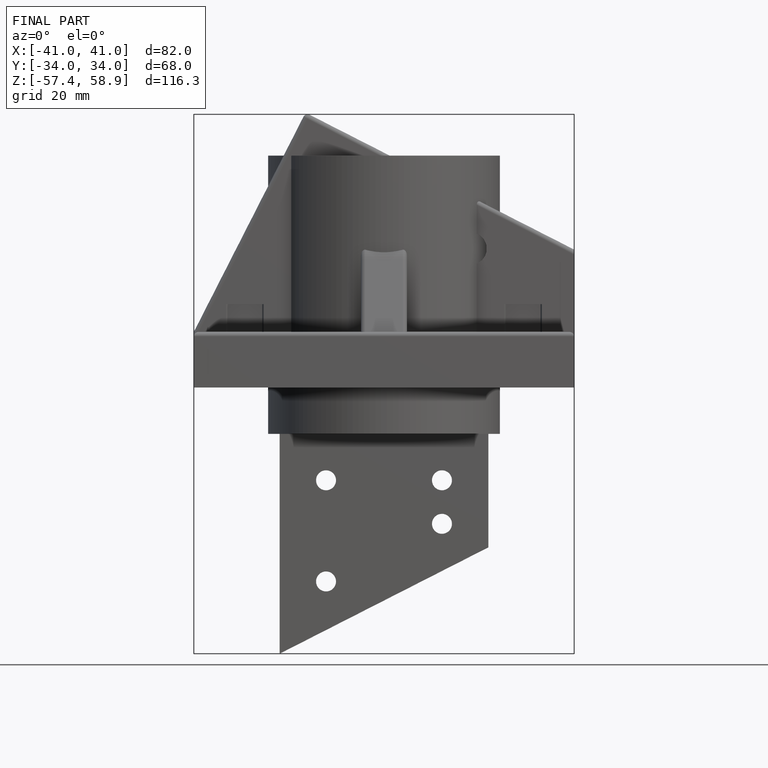
[diagram: finished part — front view with bounding-box wireframe]
